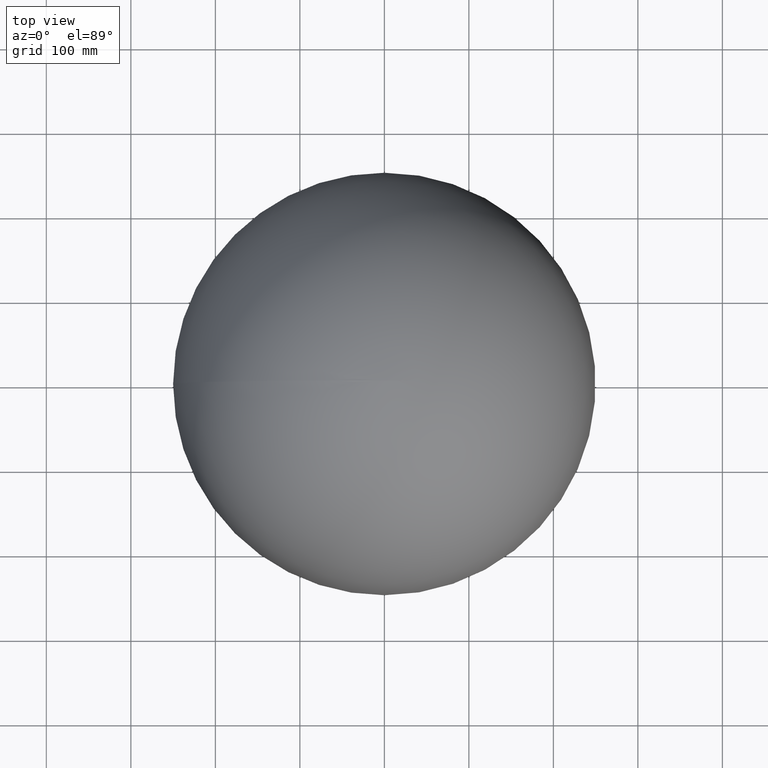
[diagram: clean part render]
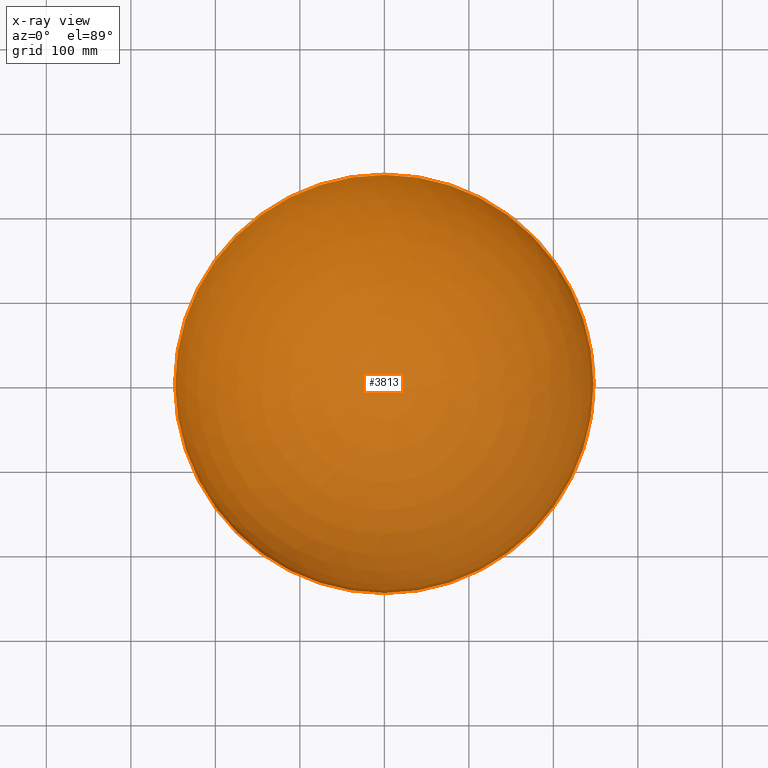
[diagram: x-ray — body ghosted, one internal face saturated and labeled with its STEP entity id]
A machine part, top view, then the same camera in x-ray: the body is ghosted and one INTERNAL B-rep face — a face not visible from any outside direction — is saturated and labeled: STEP entity #3813.
In plain terms, the highlighted spherical surface has radius 247.5 mm.
Its self-contained STEP definition (entity closure, byte-faithful):
#4 = ORIENTED_EDGE ( 'NONE', *, *, #8452, .F. ) ;
#22 = DIRECTION ( 'NONE',  ( 1.000000000000000000, 0.0000000000000000000, 0.0000000000000000000 ) ) ;
#23 = EDGE_CURVE ( 'NONE', #3772, #7956, #7551, .T. ) ;
#27 = EDGE_CURVE ( 'NONE', #1886, #7909, #3476, .T. ) ;
#30 = VERTEX_POINT ( 'NONE', #7876 ) ;
#33 = DIRECTION ( 'NONE',  ( 0.0000000000000000000, -0.7209840770893445300, -0.6929516293246059700 ) ) ;
#50 = EDGE_CURVE ( 'NONE', #5446, #1967, #1106, .T. ) ;
#87 = CARTESIAN_POINT ( 'NONE',  ( -247.4980333878201300, 0.8649839743589744500, -0.4746281550480772000 ) ) ;
#94 = CARTESIAN_POINT ( 'NONE',  ( -247.4972527502044100, 0.4860234708867521300, -1.060029380341880100 ) ) ;
#102 = DIRECTION ( 'NONE',  ( 1.000000000000000000, 0.0000000000000000000, 0.0000000000000000000 ) ) ;
#109 = DIRECTION ( 'NONE',  ( 0.0000000000000000000, 0.0000000000000000000, 1.000000000000000000 ) ) ;
#117 = CARTESIAN_POINT ( 'NONE',  ( -247.4982937489096700, 0.9192382013542895700, -0.03526381199362779700 ) ) ;
#121 = AXIS2_PLACEMENT_3D ( 'NONE', #3332, #8469, #4053 ) ;
#127 = CARTESIAN_POINT ( 'NONE',  ( 0.0000000000000000000, 0.1939288023721398300, -0.2017739372885175900 ) ) ;
#133 = CARTESIAN_POINT ( 'NONE',  ( 0.0000000000000000000, 0.0000000000000000000, -1.441639957264959200 ) ) ;
#149 = CARTESIAN_POINT ( 'NONE',  ( -247.4644150174301300, 0.8017537850375243700, -4.119626484512040500 ) ) ;
#158 = CARTESIAN_POINT ( 'NONE',  ( -247.4995081667112500, 0.4915886251335469500, -0.04240117521367545200 ) ) ;
#159 = DIRECTION ( 'NONE',  ( -0.0000000000000000000, -0.0000000000000000000, 1.000000000000000000 ) ) ;
#172 = CARTESIAN_POINT ( 'NONE',  ( -247.4850619883460500, 0.8970176329532970600, -2.567248736570503000 ) ) ;
#185 = AXIS2_PLACEMENT_3D ( 'NONE', #5253, #3850, #906 ) ;
#197 = CARTESIAN_POINT ( 'NONE',  ( -247.4785412149246300, 0.7241167913093582400, -3.178151565712385600 ) ) ;
#210 = CARTESIAN_POINT ( 'NONE',  ( -247.4701534328886200, 0.8152426492843695100, -3.756319753282045600 ) ) ;
#227 = ORIENTED_EDGE ( 'NONE', *, *, #7166, .F. ) ;
#237 = CARTESIAN_POINT ( 'NONE',  ( -247.4988229152708600, 0.7502357939369659300, -0.1407189002403848300 ) ) ;
#240 = AXIS2_PLACEMENT_3D ( 'NONE', #6033, #7493, #2295 ) ;
#246 = CARTESIAN_POINT ( 'NONE',  ( -247.4678167182987900, 0.8642753316270017600, -3.896682270111474700 ) ) ;
#270 = DIRECTION ( 'NONE',  ( -1.000000000000000000, 0.0000000000000000000, -1.224646799147353200E-016 ) ) ;
#276 = ORIENTED_EDGE ( 'NONE', *, *, #2046, .F. ) ;
#277 = EDGE_CURVE ( 'NONE', #4193, #7976, #868, .T. ) ;
#290 = ORIENTED_EDGE ( 'NONE', *, *, #1346, .F. ) ;
#298 = DIRECTION ( 'NONE',  ( -1.000000000000000000, 0.0000000000000000000, -1.224646799147353200E-016 ) ) ;
#303 = DIRECTION ( 'NONE',  ( -1.000000000000000000, 0.0000000000000000000, -1.224646799147353200E-016 ) ) ;
#309 = CARTESIAN_POINT ( 'NONE',  ( -247.4968187332560200, 0.08356836301757877800, -1.253837693032124400 ) ) ;
#314 = CARTESIAN_POINT ( 'NONE',  ( -247.4912793190045500, 0.0000000000000000000, -2.077657585470085200 ) ) ;
#330 = CARTESIAN_POINT ( 'NONE',  ( -1.515500413944874000E-014, -247.5000000000000000, 0.0000000000000000000 ) ) ;
#338 = CARTESIAN_POINT ( 'NONE',  ( 0.0000000000000000000, -3.204861111111111600, 0.0000000000000000000 ) ) ;
#339 = AXIS2_PLACEMENT_3D ( 'NONE', #1737, #4724, #2449 ) ;
#341 = CARTESIAN_POINT ( 'NONE',  ( -247.4973575856037700, 0.2315945210828663500, -1.121934371737279600 ) ) ;
#344 = CARTESIAN_POINT ( 'NONE',  ( -247.4721452984287000, -2.475560897435897800, -2.767471704727564800 ) ) ;
#351 = DIRECTION ( 'NONE',  ( -1.000000000000000000, -1.010747041618742500E-012, 0.0000000000000000000 ) ) ;
#359 = CIRCLE ( 'NONE', #5411, 247.4981119132722000 ) ;
#376 = VERTEX_POINT ( 'NONE', #158 ) ;
#430 = ORIENTED_EDGE ( 'NONE', *, *, #4698, .F. ) ;
#443 = DIRECTION ( 'NONE',  ( -0.0000000000000000000, -0.0000000000000000000, -1.000000000000000000 ) ) ;
#465 = AXIS2_PLACEMENT_3D ( 'NONE', #3695, #6582, #4458 ) ;
#484 = AXIS2_PLACEMENT_3D ( 'NONE', #8070, #4404, #8856 ) ;
#489 = DIRECTION ( 'NONE',  ( -0.0000000000000000000, -0.0000000000000000000, 1.000000000000000000 ) ) ;
#507 = EDGE_CURVE ( 'NONE', #5027, #376, #6664, .T. ) ;
#512 = CARTESIAN_POINT ( 'NONE',  ( 0.0000000000000000000, 0.0000000000000000000, -2.349025106837606500 ) ) ;
#514 = EDGE_CURVE ( 'NONE', #2459, #3699, #4072, .T. ) ;
#517 = ORIENTED_EDGE ( 'NONE', *, *, #2330, .F. ) ;
#518 = ORIENTED_EDGE ( 'NONE', *, *, #9429, .F. ) ;
#523 = CARTESIAN_POINT ( 'NONE',  ( -247.4824803810683100, 0.8649839743589744500, -2.814908019497862800 ) ) ;
#525 = CARTESIAN_POINT ( 'NONE',  ( 0.0000000000000000000, -2.424679487179487700, 0.0000000000000000000 ) ) ;
#536 = CARTESIAN_POINT ( 'NONE',  ( 0.0000000000000000000, 0.0000000000000000000, -0.4579326923076936800 ) ) ;
#540 = CIRCLE ( 'NONE', #613, 247.4922475077318000 ) ;
#541 = DIRECTION ( 'NONE',  ( -0.0000000000000000000, -0.0000000000000000000, -1.000000000000000000 ) ) ;
#543 = CARTESIAN_POINT ( 'NONE',  ( -247.4623574381814400, 0.0000000000000000000, -4.316439636752138900 ) ) ;
#552 = CARTESIAN_POINT ( 'NONE',  ( -247.4801102243823700, 0.6747087005876067900, -3.064279931223290500 ) ) ;
#556 = AXIS2_PLACEMENT_3D ( 'NONE', #5944, #159, #6004 ) ;
#574 = EDGE_LOOP ( 'NONE', ( #3883, #961, #9095, #589, #290, #3513, #4397, #8040, #8758, #1874, #518, #3470, #4560, #8946 ) ) ;
#584 = CARTESIAN_POINT ( 'NONE',  ( -247.4980333878201300, 0.8649839743589744500, -0.4746281550480772000 ) ) ;
#586 = VERTEX_POINT ( 'NONE', #4792 ) ;
#589 = ORIENTED_EDGE ( 'NONE', *, *, #4916, .F. ) ;
#590 = EDGE_CURVE ( 'NONE', #2685, #586, #4994, .T. ) ;
#594 = ORIENTED_EDGE ( 'NONE', *, *, #4153, .F. ) ;
#597 = CIRCLE ( 'NONE', #938, 247.4928449169955800 ) ;
#601 = CARTESIAN_POINT ( 'NONE',  ( 0.0000000000000000000, 0.0000000000000000000, 0.0000000000000000000 ) ) ;
#603 = CARTESIAN_POINT ( 'NONE',  ( -247.4981477815221600, 0.8613573034379878900, -0.4191267419249566900 ) ) ;
#604 = EDGE_CURVE ( 'NONE', #736, #3600, #3519, .T. ) ;
#605 = CARTESIAN_POINT ( 'NONE',  ( -247.4801102243823700, 0.6747087005876067900, -3.064279931223290500 ) ) ;
#613 = AXIS2_PLACEMENT_3D ( 'NONE', #2847, #5717, #5047 ) ;
#614 = DIRECTION ( 'NONE',  ( -0.0000000000000000000, -0.6928993320646520400, 0.7210343373407115400 ) ) ;
#658 = CIRCLE ( 'NONE', #9365, 247.4881228046801600 ) ;
#669 = CARTESIAN_POINT ( 'NONE',  ( -247.4950572979107100, -0.01696047008547008400, -1.564073350694444200 ) ) ;
#679 = VERTEX_POINT ( 'NONE', #1276 ) ;
#680 = AXIS2_PLACEMENT_3D ( 'NONE', #1103, #1835, #3218 ) ;
#682 = SPHERICAL_SURFACE ( 'NONE', #3826, 247.5000000000000000 ) ;
#694 = VERTEX_POINT ( 'NONE', #8337 ) ;
#709 = CIRCLE ( 'NONE', #884, 247.4876971040115200 ) ;
#720 = EDGE_CURVE ( 'NONE', #2685, #9413, #5326, .T. ) ;
#724 = VERTEX_POINT ( 'NONE', #2752 ) ;
#725 = AXIS2_PLACEMENT_3D ( 'NONE', #767, #3614, #8762 ) ;
#730 = CARTESIAN_POINT ( 'NONE',  ( -247.4845670303703600, -2.763888888888888800, -3.030811828521116800E-014 ) ) ;
#734 = VERTEX_POINT ( 'NONE', #956 ) ;
#736 = VERTEX_POINT ( 'NONE', #9097 ) ;
#743 = DIRECTION ( 'NONE',  ( 0.0000000000000000000, -0.6743193281498540700, 0.7384398714069611000 ) ) ;
#748 = ORIENTED_EDGE ( 'NONE', *, *, #5925, .F. ) ;
#752 = CARTESIAN_POINT ( 'NONE',  ( -247.4802351515145600, 0.5648554747534450000, -3.076385483607456900 ) ) ;
#754 = ORIENTED_EDGE ( 'NONE', *, *, #4640, .F. ) ;
#766 = VERTEX_POINT ( 'NONE', #6165 ) ;
#767 = CARTESIAN_POINT ( 'NONE',  ( 0.0000000000000000000, 0.9667467948717949300, 0.0000000000000000000 ) ) ;
#783 = CARTESIAN_POINT ( 'NONE',  ( -247.4933267460081400, 0.04434912618506065000, -1.817319477323706200 ) ) ;
#795 = FACE_BOUND ( 'NONE', #804, .T. ) ;
#804 = EDGE_LOOP ( 'NONE', ( #4135, #3049, #430, #1355, #9432, #5192, #2094, #2900, #9395 ) ) ;
#806 = B_SPLINE_CURVE_WITH_KNOTS ( 'NONE', 3,
 ( #2593, #6065, #5469, #4789, #7725, #8503, #9234, #4731, #8231, #1150 ),
 .UNSPECIFIED., .F., .F.,
 ( 4, 2, 2, 2, 4 ),
 ( 0.0000000000000000000, 0.0001133596188112780100, 0.0002267192376225560300, 0.0003400788564338340700, 0.0004534384752451119500 ),
 .UNSPECIFIED. ) ;
#810 = EDGE_CURVE ( 'NONE', #3577, #3143, #5109, .T. ) ;
#812 = EDGE_CURVE ( 'NONE', #3677, #8489, #7535, .T. ) ;
#823 = CARTESIAN_POINT ( 'NONE',  ( -247.4973352258173000, 0.8822378871325196000, -0.7372826071510162300 ) ) ;
#826 = CARTESIAN_POINT ( 'NONE',  ( -247.4756959572635800, 0.0000000000000000000, -3.468416132478634200 ) ) ;
#831 = CARTESIAN_POINT ( 'NONE',  ( -247.4637370287858900, 0.6016453574410846100, -4.193711706973079600 ) ) ;
#845 = CARTESIAN_POINT ( 'NONE',  ( -247.4667642862018200, 0.8641355799109454700, -3.962910922601067500 ) ) ;
#854 = CARTESIAN_POINT ( 'NONE',  ( 0.0000000000000000000, 0.0000000000000000000, 0.0000000000000000000 ) ) ;
#856 = ORIENTED_EDGE ( 'NONE', *, *, #2348, .F. ) ;
#868 = CIRCLE ( 'NONE', #7379, 247.5000000000000000 ) ;
#876 = CARTESIAN_POINT ( 'NONE',  ( -247.4978981166179600, 0.8573779087641406600, -0.5539691877675935200 ) ) ;
#884 = AXIS2_PLACEMENT_3D ( 'NONE', #5646, #9436, #8664 ) ;
#886 = CIRCLE ( 'NONE', #1222, 247.4912793190045500 ) ;
#892 = CIRCLE ( 'NONE', #908, 247.4724283506611200 ) ;
#901 = CARTESIAN_POINT ( 'NONE',  ( -247.4818009754719400, 0.9837072649572650200, -2.835578592414529800 ) ) ;
#906 = DIRECTION ( 'NONE',  ( 1.000000000000000000, 0.0000000000000000000, 0.0000000000000000000 ) ) ;
#907 = CARTESIAN_POINT ( 'NONE',  ( -247.4672161999393400, 0.8649839743589744500, -3.934299045138890600 ) ) ;
#908 = AXIS2_PLACEMENT_3D ( 'NONE', #5787, #4417, #743 ) ;
#918 = CARTESIAN_POINT ( 'NONE',  ( -247.4974797207694100, 0.7898056555728786300, -0.7915883441709676800 ) ) ;
#921 = DIRECTION ( 'NONE',  ( 1.000000000000000000, -1.224646799147363100E-016, 0.0000000000000000000 ) ) ;
#927 = CARTESIAN_POINT ( 'NONE',  ( -247.4811398741672400, 0.9809349457093740100, -2.893786989490190200 ) ) ;
#930 = CARTESIAN_POINT ( 'NONE',  ( -247.4723168968099600, 0.8205854589286113400, -3.609753008143696400 ) ) ;
#932 = CARTESIAN_POINT ( 'NONE',  ( -247.4826313296308300, 0.9799469758423602400, -2.763724767791139400 ) ) ;
#938 = AXIS2_PLACEMENT_3D ( 'NONE', #8482, #4038, #1865 ) ;
#939 = EDGE_CURVE ( 'NONE', #7597, #7160, #2361, .T. ) ;
#942 = AXIS2_PLACEMENT_3D ( 'NONE', #6018, #3144, #6681 ) ;
#956 = CARTESIAN_POINT ( 'NONE',  ( -247.4721152602733400, 0.9667467948717949300, -3.587139423076925100 ) ) ;
#961 = ORIENTED_EDGE ( 'NONE', *, *, #8088, .F. ) ;
#970 = VERTEX_POINT ( 'NONE', #5898 ) ;
#974 = CARTESIAN_POINT ( 'NONE',  ( -247.4888524379379600, 0.0000000000000000000, -2.349025106837606500 ) ) ;
#975 = CARTESIAN_POINT ( 'NONE',  ( 0.0000000000000000000, 0.0000000000000000000, -4.197716346153848500 ) ) ;
#982 = ORIENTED_EDGE ( 'NONE', *, *, #7204, .F. ) ;
#988 = CARTESIAN_POINT ( 'NONE',  ( -247.4727350182915600, 0.7923719618055555800, -3.587139423076925100 ) ) ;
#1022 = CARTESIAN_POINT ( 'NONE',  ( -247.4808556499292000, 0.0000000000000000000, -3.078325320512820300 ) ) ;
#1024 = CARTESIAN_POINT ( 'NONE',  ( -247.4736291200970000, 0.4364598355778772100, -3.587470879266159600 ) ) ;
#1045 = EDGE_CURVE ( 'NONE', #376, #3677, #2141, .T. ) ;
#1051 = CARTESIAN_POINT ( 'NONE',  ( -247.4989270233025700, 0.7298643476970138000, -0.02532982552956384100 ) ) ;
#1074 = VERTEX_POINT ( 'NONE', #6786 ) ;
#1076 = DIRECTION ( 'NONE',  ( 0.0000000000000000000, 1.000000000000000000, 0.0000000000000000000 ) ) ;
#1079 = ORIENTED_EDGE ( 'NONE', *, *, #2063, .F. ) ;
#1083 = B_SPLINE_CURVE_WITH_KNOTS ( 'NONE', 3,
 ( #7359, #7454, #3057, #6723, #2351, #2290, #2970, #3792, #7420, #94 ),
 .UNSPECIFIED., .F., .F.,
 ( 4, 2, 2, 2, 4 ),
 ( 0.0000000000000000000, 0.0001961914334333696200, 0.0003923828668667392400, 0.0005885743003001089100, 0.0007847657337334784700 ),
 .UNSPECIFIED. ) ;
#1086 = CARTESIAN_POINT ( 'NONE',  ( -247.4903593618607500, 0.9667467948717949300, -1.958934294871794300 ) ) ;
#1088 = CARTESIAN_POINT ( 'NONE',  ( -247.4980790703002900, 0.5236545138888890600, -0.8225827991452993000 ) ) ;
#1093 = CARTESIAN_POINT ( 'NONE',  ( 0.0000000000000000000, -3.069177350427351000, 0.0000000000000000000 ) ) ;
#1102 = B_SPLINE_CURVE_WITH_KNOTS ( 'NONE', 3,
 ( #8193, #6725, #4624, #3796, #918, #823, #5969, #1551, #2294, #2557, #7689, #7591 ),
 .UNSPECIFIED., .F., .F.,
 ( 4, 2, 2, 2, 2, 4 ),
 ( 1.084202172485504300E-019, 0.0001605680075444586400, 0.0003211360150889171700, 0.0004817040226333757000, 0.0005619880264056049400, 0.0006422720301778342400 ),
 .UNSPECIFIED. ) ;
#1103 = CARTESIAN_POINT ( 'NONE',  ( 0.0000000000000000000, -3.204861111111111600, 0.0000000000000000000 ) ) ;
#1106 = CIRCLE ( 'NONE', #4254, 247.4867562922084400 ) ;
#1140 = FACE_OUTER_BOUND ( 'NONE', #2583, .T. ) ;
#1145 = CARTESIAN_POINT ( 'NONE',  ( -247.4995081667112500, 0.4915886251335469500, -0.04240117521367545200 ) ) ;
#1150 = CARTESIAN_POINT ( 'NONE',  ( -247.4930794488195700, 0.9837072649572650200, -1.567783453525640700 ) ) ;
#1165 = ORIENTED_EDGE ( 'NONE', *, *, #2576, .F. ) ;
#1175 = CARTESIAN_POINT ( 'NONE',  ( -247.4988229152708600, 0.7502357939369659300, -0.1407189002403848300 ) ) ;
#1184 = CARTESIAN_POINT ( 'NONE',  ( -247.4737566879979100, 0.3495446881677350400, -3.587139423076925100 ) ) ;
#1193 = ORIENTED_EDGE ( 'NONE', *, *, #1263, .F. ) ;
#1212 = CARTESIAN_POINT ( 'NONE',  ( 0.0000000000000000000, 0.0000000000000000000, 0.0000000000000000000 ) ) ;
#1222 = AXIS2_PLACEMENT_3D ( 'NONE', #3366, #4162, #6994 ) ;
#1244 = DIRECTION ( 'NONE',  ( -0.0000000000000000000, -0.0000000000000000000, -1.000000000000000000 ) ) ;
#1263 = EDGE_CURVE ( 'NONE', #970, #9386, #4943, .T. ) ;
#1269 = B_SPLINE_CURVE_WITH_KNOTS ( 'NONE', 3,
 ( #2029, #2769, #7903, #5765, #9458, #3515, #8651, #4247, #9423, #603, #5731, #5006 ),
 .UNSPECIFIED., .F., .F.,
 ( 4, 2, 2, 2, 2, 4 ),
 ( 0.0000000000000000000, 0.0001641360142287011500, 0.0003282720284574024500, 0.0004924080426861037400, 0.0005744760498004545400, 0.0006565440569148053400 ),
 .UNSPECIFIED. ) ;
#1272 = AXIS2_PLACEMENT_3D ( 'NONE', #5108, #7329, #2140 ) ;
#1276 = CARTESIAN_POINT ( 'NONE',  ( -247.4893092167843100, -1.881944444444444900, -1.322916666666668700 ) ) ;
#1294 = DIRECTION ( 'NONE',  ( -0.0000000000000000000, -0.0000000000000000000, -1.000000000000000000 ) ) ;
#1303 = DIRECTION ( 'NONE',  ( -0.0000000000000000000, -1.000000000000000000, 0.0000000000000000000 ) ) ;
#1306 = VERTEX_POINT ( 'NONE', #5912 ) ;
#1309 = AXIS2_PLACEMENT_3D ( 'NONE', #7810, #4080, #3416 ) ;
#1314 = CARTESIAN_POINT ( 'NONE',  ( 0.0000000000000000000, -3.204861111111111600, 0.0000000000000000000 ) ) ;
#1318 = CARTESIAN_POINT ( 'NONE',  ( -247.4776755404217000, -2.560363247863248300, -2.120058760683762900 ) ) ;
#1322 = ORIENTED_EDGE ( 'NONE', *, *, #8378, .F. ) ;
#1331 = VERTEX_POINT ( 'NONE', #3169 ) ;
#1335 = CARTESIAN_POINT ( 'NONE',  ( -247.4812385487823900, 0.8476837739252529600, -2.927253977308416300 ) ) ;
#1336 = DIRECTION ( 'NONE',  ( 0.0000000000000000000, 0.0000000000000000000, -1.000000000000000000 ) ) ;
#1346 = EDGE_CURVE ( 'NONE', #3699, #724, #6960, .T. ) ;
#1355 = ORIENTED_EDGE ( 'NONE', *, *, #9215, .F. ) ;
#1391 = VERTEX_POINT ( 'NONE', #5546 ) ;
#1395 = CARTESIAN_POINT ( 'NONE',  ( -247.4818354987888300, 0.8623240711485903300, -2.871987572107058000 ) ) ;
#1438 = CIRCLE ( 'NONE', #8844, 247.4853081085657300 ) ;
#1446 = AXIS2_PLACEMENT_3D ( 'NONE', #3541, #541, #7937 ) ;
#1466 = CARTESIAN_POINT ( 'NONE',  ( -247.4639179819834300, 0.4914586750456891300, -4.197512687069822900 ) ) ;
#1467 = EDGE_CURVE ( 'NONE', #7863, #694, #597, .T. ) ;
#1470 = DIRECTION ( 'NONE',  ( -0.0000000000000000000, -1.000000000000000000, 0.0000000000000000000 ) ) ;
#1502 = CARTESIAN_POINT ( 'NONE',  ( -247.4670240396130500, 0.9825426668323210500, -3.918918759485718400 ) ) ;
#1507 = CARTESIAN_POINT ( 'NONE',  ( 0.0000000000000000000, 0.0000000000000000000, -2.696714743589743600 ) ) ;
#1516 = DIRECTION ( 'NONE',  ( -0.0000000000000000000, -0.0000000000000000000, -1.000000000000000000 ) ) ;
#1521 = ORIENTED_EDGE ( 'NONE', *, *, #720, .F. ) ;
#1524 = DIRECTION ( 'NONE',  ( -0.0000000000000000000, -0.0000000000000000000, -1.000000000000000000 ) ) ;
#1537 = CARTESIAN_POINT ( 'NONE',  ( -247.4982171281544400, 0.9394244966590257200, -4.293511859689285300E-012 ) ) ;
#1539 = CARTESIAN_POINT ( 'NONE',  ( -247.4802030880987000, 0.5832573573995246700, -3.075586057634534900 ) ) ;
#1551 = CARTESIAN_POINT ( 'NONE',  ( -247.4973499416024900, 0.9589993803983114500, -0.6267465020412529300 ) ) ;
#1565 = CARTESIAN_POINT ( 'NONE',  ( -247.4757134685170300, -3.204861111111111600, -1.322916666666668700 ) ) ;
#1570 = VERTEX_POINT ( 'NONE', #7121 ) ;
#1578 = DIRECTION ( 'NONE',  ( 0.0000000000000000000, 0.0000000000000000000, -1.000000000000000000 ) ) ;
#1581 = CARTESIAN_POINT ( 'NONE',  ( 0.0000000000000000000, 0.0000000000000000000, -0.4579326923076936800 ) ) ;
#1586 = DIRECTION ( 'NONE',  ( 1.000000000000000000, 0.0000000000000000000, 0.0000000000000000000 ) ) ;
#1604 = CARTESIAN_POINT ( 'NONE',  ( -247.4980852571436000, 0.6818088160287884000, -0.6960511159703614000 ) ) ;
#1605 = AXIS2_PLACEMENT_3D ( 'NONE', #512, #4753, #9257 ) ;
#1613 = VERTEX_POINT ( 'NONE', #8351 ) ;
#1622 = CARTESIAN_POINT ( 'NONE',  ( -247.4790382883713800, 0.8787627801360155000, -3.099474482400772900 ) ) ;
#1624 = AXIS2_PLACEMENT_3D ( 'NONE', #4970, #3571, #7229 ) ;
#1635 = ORIENTED_EDGE ( 'NONE', *, *, #7990, .F. ) ;
#1639 = DIRECTION ( 'NONE',  ( 1.000000000000000000, 0.0000000000000000000, 0.0000000000000000000 ) ) ;
#1655 = CARTESIAN_POINT ( 'NONE',  ( -247.4861128381514300, 0.8205848160548774300, -2.490361467228727800 ) ) ;
#1691 = CIRCLE ( 'NONE', #6181, 247.4643998183925100 ) ;
#1702 = CIRCLE ( 'NONE', #942, 247.4917759773561800 ) ;
#1712 = VERTEX_POINT ( 'NONE', #2637 ) ;
#1716 = DIRECTION ( 'NONE',  ( 1.224646799147353200E-016, -1.499759782661869700E-032, -1.000000000000000000 ) ) ;
#1718 = CARTESIAN_POINT ( 'NONE',  ( -247.4802336248246500, 0.9581583725027550400, -2.977706109346033100 ) ) ;
#1729 = CIRCLE ( 'NONE', #4336, 247.5000000000000000 ) ;
#1737 = CARTESIAN_POINT ( 'NONE',  ( 0.0000000000000000000, -1.881944444444444900, 0.0000000000000000000 ) ) ;
#1741 = CARTESIAN_POINT ( 'NONE',  ( -247.4990657767326400, 0.6808787376926760400, -0.03300895479708260100 ) ) ;
#1745 = CARTESIAN_POINT ( 'NONE',  ( -247.4869642661650500, 0.9667467948717949300, -2.349025106837606500 ) ) ;
#1759 = DIRECTION ( 'NONE',  ( 0.0000000000000000000, 0.0000000000000000000, 1.000000000000000000 ) ) ;
#1766 = ORIENTED_EDGE ( 'NONE', *, *, #3453, .F. ) ;
#1771 = DIRECTION ( 'NONE',  ( 0.0000000000000000000, 0.0000000000000000000, -1.000000000000000000 ) ) ;
#1775 = ORIENTED_EDGE ( 'NONE', *, *, #7321, .F. ) ;
#1776 = CARTESIAN_POINT ( 'NONE',  ( -247.4993062340797100, 0.5864698856465109200, -0.04138265830451928100 ) ) ;
#1779 = B_SPLINE_CURVE_WITH_KNOTS ( 'NONE', 3,
 ( #5352, #6876, #6055, #8287, #7521, #210, #7613, #6909, #246, #6809 ),
 .UNSPECIFIED., .F., .F.,
 ( 4, 2, 2, 2, 4 ),
 ( 0.0000000000000000000, 0.0001111447331565841900, 0.0002222894663131683900, 0.0003334341994697525800, 0.0004445789326263367800 ),
 .UNSPECIFIED. ) ;
#1796 = CARTESIAN_POINT ( 'NONE',  ( -247.4958728014235000, -0.005242751387151206400, -1.430812556741343400 ) ) ;
#1801 = CARTESIAN_POINT ( 'NONE',  ( 0.0000000000000000000, 0.0000000000000000000, -2.577991452991453200 ) ) ;
#1822 = ORIENTED_EDGE ( 'NONE', *, *, #5927, .F. ) ;
#1835 = DIRECTION ( 'NONE',  ( -0.0000000000000000000, -1.000000000000000000, 0.0000000000000000000 ) ) ;
#1839 = AXIS2_PLACEMENT_3D ( 'NONE', #1801, #6933, #2545 ) ;
#1862 = CARTESIAN_POINT ( 'NONE',  ( 0.0000000000000000000, 0.0000000000000000000, 0.0000000000000000000 ) ) ;
#1865 = DIRECTION ( 'NONE',  ( 0.0000000000000000000, 0.0000000000000000000, -1.000000000000000000 ) ) ;
#1869 = AXIS2_PLACEMENT_3D ( 'NONE', #127, #6563, #33 ) ;
#1874 = ORIENTED_EDGE ( 'NONE', *, *, #6500, .F. ) ;
#1886 = VERTEX_POINT ( 'NONE', #8797 ) ;
#1889 = CARTESIAN_POINT ( 'NONE',  ( -247.4858089234240600, 0.9667467948717949300, -2.467748397435897400 ) ) ;
#1921 = CARTESIAN_POINT ( 'NONE',  ( -247.4975494811755500, 0.9837072649572650200, -0.4952987279647437200 ) ) ;
#1937 = ORIENTED_EDGE ( 'NONE', *, *, #9501, .F. ) ;
#1950 = VERTEX_POINT ( 'NONE', #5910 ) ;
#1967 = VERTEX_POINT ( 'NONE', #1318 ) ;
#2029 = CARTESIAN_POINT ( 'NONE',  ( -247.4996618760247900, 0.3760454226762820500, -0.1611244658119660400 ) ) ;
#2046 = EDGE_CURVE ( 'NONE', #9140, #6493, #2494, .T. ) ;
#2063 = EDGE_CURVE ( 'NONE', #1950, #7712, #3784, .T. ) ;
#2065 = CARTESIAN_POINT ( 'NONE',  ( 0.0000000000000000000, 0.0000000000000000000, -0.8225827991452993000 ) ) ;
#2068 = CARTESIAN_POINT ( 'NONE',  ( -247.4940705894111100, 0.001798520757956838200, -1.713608714561631200 ) ) ;
#2092 = DIRECTION ( 'NONE',  ( -0.0000000000000000000, -1.000000000000000000, 0.0000000000000000000 ) ) ;
#2094 = ORIENTED_EDGE ( 'NONE', *, *, #2948, .F. ) ;
#2097 = B_SPLINE_CURVE_WITH_KNOTS ( 'NONE', 3,
 ( #5918, #1502, #5374, #3841, #8966, #4674, #2401, #7574, #930, #3208 ),
 .UNSPECIFIED., .F., .F.,
 ( 4, 2, 2, 2, 4 ),
 ( 0.0000000000000000000, 0.0001071661685159411600, 0.0002143323370318824000, 0.0003214985055478236300, 0.0004286646740637649200 ),
 .UNSPECIFIED. ) ;
#2109 = AXIS2_PLACEMENT_3D ( 'NONE', #3397, #4889, #1336 ) ;
#2140 = DIRECTION ( 'NONE',  ( 1.000000000000000000, 0.0000000000000000000, 0.0000000000000000000 ) ) ;
#2141 = CIRCLE ( 'NONE', #6788, 247.4999963679602500 ) ;
#2169 = DIRECTION ( 'NONE',  ( -1.000000000000000000, -1.446842645691504000E-012, 0.0000000000000000000 ) ) ;
#2190 = VERTEX_POINT ( 'NONE', #9303 ) ;
#2198 = CARTESIAN_POINT ( 'NONE',  ( -247.4857282516524900, 0.7414233318213105900, -2.552647399331124100 ) ) ;
#2201 = DIRECTION ( 'NONE',  ( 0.0000000000000000000, 0.0000000000000000000, 1.000000000000000000 ) ) ;
#2204 = EDGE_CURVE ( 'NONE', #7508, #6400, #709, .T. ) ;
#2241 = CARTESIAN_POINT ( 'NONE',  ( -247.4637007183891300, 0.6566798299997355100, -4.187593436177534700 ) ) ;
#2247 = VERTEX_POINT ( 'NONE', #8009 ) ;
#2252 = CARTESIAN_POINT ( 'NONE',  ( -247.4663131083898700, 0.8623242590316521100, -3.991377047826243800 ) ) ;
#2257 = CARTESIAN_POINT ( 'NONE',  ( 0.0000000000000000000, 0.0000000000000000000, -1.085470085470086900 ) ) ;
#2271 = CARTESIAN_POINT ( 'NONE',  ( -247.4980203843098500, 0.9386035389918360200, -0.3167060786854071200 ) ) ;
#2278 = CIRCLE ( 'NONE', #4864, 247.4976196950054500 ) ;
#2284 = CARTESIAN_POINT ( 'NONE',  ( -247.4984440605076400, 0.5241845285790598400, -0.7038595085470088500 ) ) ;
#2290 = CARTESIAN_POINT ( 'NONE',  ( -247.4959997610505400, 0.7938803000119866200, -1.163711100737940400 ) ) ;
#2294 = CARTESIAN_POINT ( 'NONE',  ( -247.4973746652583500, 0.9687809753535233700, -0.6014223838452886800 ) ) ;
#2295 = DIRECTION ( 'NONE',  ( 1.000000000000000000, 0.0000000000000000000, 0.0000000000000000000 ) ) ;
#2299 = ORIENTED_EDGE ( 'NONE', *, *, #8179, .F. ) ;
#2313 = CARTESIAN_POINT ( 'NONE',  ( -247.4926203794779800, 0.1114688394810551100, -1.908359321186083600 ) ) ;
#2330 = EDGE_CURVE ( 'NONE', #2190, #1391, #6653, .T. ) ;
#2334 = CARTESIAN_POINT ( 'NONE',  ( -247.4639819802999900, 0.4547526041666666900, -4.197716346153848500 ) ) ;
#2346 = CARTESIAN_POINT ( 'NONE',  ( -247.4921910162462700, 0.1672196347489316400, -1.958934294871794300 ) ) ;
#2347 = ORIENTED_EDGE ( 'NONE', *, *, #1467, .F. ) ;
#2348 = EDGE_CURVE ( 'NONE', #6454, #9201, #7117, .T. ) ;
#2351 = CARTESIAN_POINT ( 'NONE',  ( -247.4952231181289300, 0.8858199774049023700, -1.258659546458445800 ) ) ;
#2358 = CARTESIAN_POINT ( 'NONE',  ( -247.4692480724230000, -1.881944444444444400, -3.417534722222221900 ) ) ;
#2360 = CIRCLE ( 'NONE', #185, 247.4740035453409100 ) ;
#2361 = CIRCLE ( 'NONE', #1869, 247.4998417755006100 ) ;
#2371 = VERTEX_POINT ( 'NONE', #6690 ) ;
#2400 = ORIENTED_EDGE ( 'NONE', *, *, #810, .F. ) ;
#2401 = CARTESIAN_POINT ( 'NONE',  ( -247.4709181820993300, 0.8970189461813481400, -3.686641466895521200 ) ) ;
#2438 = CARTESIAN_POINT ( 'NONE',  ( -247.4965403389962000, 0.04484050907217089500, -1.309509585206185100 ) ) ;
#2449 = DIRECTION ( 'NONE',  ( 0.0000000000000000000, 0.0000000000000000000, -1.000000000000000000 ) ) ;
#2459 = VERTEX_POINT ( 'NONE', #6947 ) ;
#2465 = CARTESIAN_POINT ( 'NONE',  ( -247.4818009754719400, 0.9837072649572650200, -2.835578592414529800 ) ) ;
#2468 = AXIS2_PLACEMENT_3D ( 'NONE', #1212, #7886, #5675 ) ;
#2494 = B_SPLINE_CURVE_WITH_KNOTS ( 'NONE', 3,
 ( #3167, #1024, #7500, #8339 ),
 .UNSPECIFIED., .F., .F.,
 ( 4, 4 ),
 ( 5.421010862427522200E-020, 0.0002607451579636901400 ),
 .UNSPECIFIED. ) ;
#2502 = EDGE_CURVE ( 'NONE', #7259, #4193, #8736, .T. ) ;
#2519 = EDGE_CURVE ( 'NONE', #6635, #3356, #5149, .T. ) ;
#2531 = CARTESIAN_POINT ( 'NONE',  ( 0.0000000000000000000, 0.0000000000000000000, -3.197048611111110700 ) ) ;
#2537 = CARTESIAN_POINT ( 'NONE',  ( -247.4672161999393400, 0.8649839743589744500, -3.934299045138890600 ) ) ;
#2545 = DIRECTION ( 'NONE',  ( -1.000000000000000000, 0.0000000000000000000, 0.0000000000000000000 ) ) ;
#2557 = CARTESIAN_POINT ( 'NONE',  ( -247.4974472843694000, 0.9810012546281241500, -0.5494869575299644600 ) ) ;
#2576 = EDGE_CURVE ( 'NONE', #7481, #4530, #7806, .T. ) ;
#2583 = EDGE_LOOP ( 'NONE', ( #1521, #6369, #3328, #5198, #8529, #4183, #6238, #7897, #856, #9014, #4, #4362, #4194, #4265, #6263, #3818, #8240, #1165, #2698 ) ) ;
#2593 = CARTESIAN_POINT ( 'NONE',  ( -247.4909934568844700, 0.7878668369391025300, -1.958934294871794300 ) ) ;
#2601 = ORIENTED_EDGE ( 'NONE', *, *, #7447, .F. ) ;
#2618 = DIRECTION ( 'NONE',  ( -0.0000000000000000000, -0.0000000000000000000, 1.000000000000000000 ) ) ;
#2621 = CIRCLE ( 'NONE', #9496, 247.4909197341414400 ) ;
#2629 = FACE_BOUND ( 'NONE', #7563, .T. ) ;
#2631 = DIRECTION ( 'NONE',  ( -0.0000000000000000000, -1.000000000000000000, 0.0000000000000000000 ) ) ;
#2637 = CARTESIAN_POINT ( 'NONE',  ( -247.4996618760247900, 0.3760454226762820500, -0.1611244658119660400 ) ) ;
#2644 = EDGE_CURVE ( 'NONE', #1613, #9502, #7341, .T. ) ;
#2658 = DIRECTION ( 'NONE',  ( 1.000000000000000000, 0.0000000000000000000, 0.0000000000000000000 ) ) ;
#2669 = B_SPLINE_CURVE_WITH_KNOTS ( 'NONE', 3,
 ( #237, #3080, #7412, #7444, #117, #1537 ),
 .UNSPECIFIED., .F., .F.,
 ( 4, 2, 4 ),
 ( 0.0000000000000000000, 0.0001197008430209538900, 0.0002394016860419077800 ),
 .UNSPECIFIED. ) ;
#2680 = DIRECTION ( 'NONE',  ( 0.0000000000000000000, 0.0000000000000000000, 1.000000000000000000 ) ) ;
#2682 = B_SPLINE_CURVE_WITH_KNOTS ( 'NONE', 3,
 ( #669, #5798, #6532, #2068, #6717, #783, #7415, #2313, #5226, #2346 ),
 .UNSPECIFIED., .F., .F.,
 ( 4, 2, 2, 2, 4 ),
 ( 0.0000000000000000000, 0.0001129931461512557100, 0.0002259862923025114200, 0.0003389794384537671000, 0.0004519725846050228400 ),
 .UNSPECIFIED. ) ;
#2685 = VERTEX_POINT ( 'NONE', #330 ) ;
#2698 = ORIENTED_EDGE ( 'NONE', *, *, #8695, .F. ) ;
#2717 = VERTEX_POINT ( 'NONE', #1088 ) ;
#2726 = EDGE_CURVE ( 'NONE', #5772, #7282, #3444, .T. ) ;
#2752 = CARTESIAN_POINT ( 'NONE',  ( -247.4818009754719400, 0.9837072649572650200, -2.835578592414529800 ) ) ;
#2769 = CARTESIAN_POINT ( 'NONE',  ( -247.4995784631225300, 0.4307966578597324200, -0.1614702465309491600 ) ) ;
#2772 = DIRECTION ( 'NONE',  ( -0.0000000000000000000, -0.0000000000000000000, -1.000000000000000000 ) ) ;
#2789 = DIRECTION ( 'NONE',  ( 0.0000000000000000000, 0.0000000000000000000, 1.000000000000000000 ) ) ;
#2798 = DIRECTION ( 'NONE',  ( -0.0000000000000000000, -0.0000000000000000000, 1.000000000000000000 ) ) ;
#2801 = CARTESIAN_POINT ( 'NONE',  ( -247.4801505593408700, 0.6199815023636714400, -3.072572548005994400 ) ) ;
#2847 = CARTESIAN_POINT ( 'NONE',  ( 0.0000000000000000000, 0.0000000000000000000, -1.958934294871794300 ) ) ;
#2856 = VERTEX_POINT ( 'NONE', #3670 ) ;
#2883 = CIRCLE ( 'NONE', #240, 247.4976196950054500 ) ;
#2900 = ORIENTED_EDGE ( 'NONE', *, *, #5304, .F. ) ;
#2922 = CARTESIAN_POINT ( 'NONE',  ( 0.0000000000000000000, 0.0000000000000000000, 0.0000000000000000000 ) ) ;
#2948 = EDGE_CURVE ( 'NONE', #7394, #766, #1083, .T. ) ;
#2959 = AXIS2_PLACEMENT_3D ( 'NONE', #4667, #1716, #298 ) ;
#2966 = CIRCLE ( 'NONE', #4035, 247.5000000000000000 ) ;
#2970 = CARTESIAN_POINT ( 'NONE',  ( -247.4963515314200600, 0.7391350715953289900, -1.124258748091596000 ) ) ;
#2974 = CARTESIAN_POINT ( 'NONE',  ( -247.4842006042972900, 0.8339242994836084700, -2.669532183389669000 ) ) ;
#2988 = EDGE_CURVE ( 'NONE', #734, #3435, #359, .T. ) ;
#3001 = ORIENTED_EDGE ( 'NONE', *, *, #7748, .F. ) ;
#3011 = VERTEX_POINT ( 'NONE', #5937 ) ;
#3019 = CARTESIAN_POINT ( 'NONE',  ( -247.4654661418538500, 0.8476846695167963300, -4.046642462745491100 ) ) ;
#3021 = EDGE_CURVE ( 'NONE', #8424, #2856, #4803, .T. ) ;
#3023 = EDGE_CURVE ( 'NONE', #4530, #30, #6316, .T. ) ;
#3027 = DIRECTION ( 'NONE',  ( -0.0000000000000000000, -0.0000000000000000000, 1.000000000000000000 ) ) ;
#3049 = ORIENTED_EDGE ( 'NONE', *, *, #6109, .F. ) ;
#3057 = CARTESIAN_POINT ( 'NONE',  ( -247.4939297181679500, 0.9725655003530793200, -1.436404213289019800 ) ) ;
#3077 = ORIENTED_EDGE ( 'NONE', *, *, #7646, .F. ) ;
#3080 = CARTESIAN_POINT ( 'NONE',  ( -247.4987156000433700, 0.7882031997837126700, -0.1270454393407599900 ) ) ;
#3104 = DIRECTION ( 'NONE',  ( 0.0000000000000000000, 0.0000000000000000000, -1.000000000000000000 ) ) ;
#3107 = CARTESIAN_POINT ( 'NONE',  ( 0.0000000000000000000, 0.0000000000000000000, -2.120058760683762900 ) ) ;
#3135 = AXIS2_PLACEMENT_3D ( 'NONE', #2531, #4124, #2658 ) ;
#3143 = VERTEX_POINT ( 'NONE', #7619 ) ;
#3144 = DIRECTION ( 'NONE',  ( -0.0000000000000000000, -1.000000000000000000, 0.0000000000000000000 ) ) ;
#3150 = CARTESIAN_POINT ( 'NONE',  ( -247.4843758598358900, -2.560363247863248300, -1.085470085470086900 ) ) ;
#3157 = DIRECTION ( 'NONE',  ( -0.0000000000000000000, -0.0000000000000000000, -1.000000000000000000 ) ) ;
#3167 = CARTESIAN_POINT ( 'NONE',  ( -247.4737566879979100, 0.3495446881677350400, -3.587139423076925100 ) ) ;
#3169 = CARTESIAN_POINT ( 'NONE',  ( -247.4982171281544400, 0.9394244966590257200, -4.293511859689285300E-012 ) ) ;
#3175 = CARTESIAN_POINT ( 'NONE',  ( -247.4972527502044100, 0.4860234708867521300, -1.060029380341880100 ) ) ;
#3185 = CARTESIAN_POINT ( 'NONE',  ( -247.4860166607082000, -2.628205128205128600, -0.1187232905982907000 ) ) ;
#3202 = ORIENTED_EDGE ( 'NONE', *, *, #5775, .F. ) ;
#3205 = CIRCLE ( 'NONE', #8643, 247.4958013264742600 ) ;
#3208 = CARTESIAN_POINT ( 'NONE',  ( -247.4727350182915600, 0.7923719618055555800, -3.587139423076925100 ) ) ;
#3215 = EDGE_CURVE ( 'NONE', #3011, #2717, #8140, .T. ) ;
#3218 = DIRECTION ( 'NONE',  ( 0.0000000000000000000, 0.0000000000000000000, 1.000000000000000000 ) ) ;
#3263 = DIRECTION ( 'NONE',  ( 0.0000000000000000000, 0.0000000000000000000, 1.000000000000000000 ) ) ;
#3275 = DIRECTION ( 'NONE',  ( 0.0000000000000000000, 0.0000000000000000000, -1.000000000000000000 ) ) ;
#3313 = CARTESIAN_POINT ( 'NONE',  ( -247.4973751370036200, 0.4198010489155892800, -1.061817307014292400 ) ) ;
#3315 = VERTEX_POINT ( 'NONE', #543 ) ;
#3328 = ORIENTED_EDGE ( 'NONE', *, *, #5958, .F. ) ;
#3332 = CARTESIAN_POINT ( 'NONE',  ( 0.0000000000000000000, 0.0000000000000000000, -3.587139423076925100 ) ) ;
#3356 = VERTEX_POINT ( 'NONE', #5891 ) ;
#3366 = CARTESIAN_POINT ( 'NONE',  ( 0.0000000000000000000, 0.0000000000000000000, -2.077657585470085200 ) ) ;
#3390 = CARTESIAN_POINT ( 'NONE',  ( -247.4617386445783300, 0.7812308848751596800, -4.281465127260568200 ) ) ;
#3397 = CARTESIAN_POINT ( 'NONE',  ( 0.0000000000000000000, 0.9667467948717949300, 0.0000000000000000000 ) ) ;
#3401 = EDGE_CURVE ( 'NONE', #8136, #8359, #4246, .T. ) ;
#3404 = EDGE_CURVE ( 'NONE', #8489, #1712, #5036, .T. ) ;
#3416 = DIRECTION ( 'NONE',  ( 0.0000000000000000000, 0.6744544184908600700, -0.7383164886267648000 ) ) ;
#3419 = CARTESIAN_POINT ( 'NONE',  ( -247.4616336713897900, 0.7241216106274850400, -4.297541517511992200 ) ) ;
#3431 = CARTESIAN_POINT ( 'NONE',  ( -247.4876991428741100, -2.424679487179487700, -0.4579326923076936800 ) ) ;
#3435 = VERTEX_POINT ( 'NONE', #5220 ) ;
#3444 = CIRCLE ( 'NONE', #2109, 247.4981119132722000 ) ;
#3451 = VERTEX_POINT ( 'NONE', #4423 ) ;
#3453 = EDGE_CURVE ( 'NONE', #3451, #4444, #1702, .T. ) ;
#3470 = ORIENTED_EDGE ( 'NONE', *, *, #8007, .F. ) ;
#3476 = B_SPLINE_CURVE_WITH_KNOTS ( 'NONE', 3,
 ( #8592, #8657, #5571, #3419, #3390, #5709, #7137, #4219, #6413, #4184, #8528, #9295 ),
 .UNSPECIFIED., .F., .F.,
 ( 4, 2, 2, 2, 2, 4 ),
 ( 0.0000000000000000000, 0.0001733898079294767100, 0.0003467796158589534300, 0.0005201694237884301400, 0.0006068643277531679600, 0.0006935592317179056600 ),
 .UNSPECIFIED. ) ;
#3485 = EDGE_CURVE ( 'NONE', #7956, #1331, #2669, .T. ) ;
#3513 = ORIENTED_EDGE ( 'NONE', *, *, #514, .F. ) ;
#3515 = CARTESIAN_POINT ( 'NONE',  ( -247.4987689005057000, 0.7470526604651631700, -0.2331936472407647700 ) ) ;
#3518 = B_SPLINE_CURVE_WITH_KNOTS ( 'NONE', 3,
 ( #7151, #7924, #5023, #5874 ),
 .UNSPECIFIED., .F., .F.,
 ( 4, 4 ),
 ( 5.421010862427522200E-020, 0.0002607448284410135300 ),
 .UNSPECIFIED. ) ;
#3519 = CIRCLE ( 'NONE', #6288, 247.4808556499292000 ) ;
#3522 = CIRCLE ( 'NONE', #1839, 247.4865732925087500 ) ;
#3524 = CARTESIAN_POINT ( 'NONE',  ( -247.4801531536127200, 0.7301190591780352100, -3.048204040007064500 ) ) ;
#3537 = CARTESIAN_POINT ( 'NONE',  ( -247.4549432821871200, -3.204861111111111600, -3.468416132478632500 ) ) ;
#3539 = CARTESIAN_POINT ( 'NONE',  ( 0.0000000000000000000, 0.0000000000000000000, -0.3392094017094030600 ) ) ;
#3541 = CARTESIAN_POINT ( 'NONE',  ( 0.0000000000000000000, 0.0000000000000000000, -2.238782051282053300 ) ) ;
#3544 = CARTESIAN_POINT ( 'NONE',  ( 0.0000000000000000000, 0.0000000000000000000, -0.1187232905982907000 ) ) ;
#3549 = FACE_BOUND ( 'NONE', #4850, .T. ) ;
#3551 = AXIS2_PLACEMENT_3D ( 'NONE', #5808, #9529, #2169 ) ;
#3552 = CARTESIAN_POINT ( 'NONE',  ( -247.4801265726324900, 0.7025725216153684300, -3.056824401789774100 ) ) ;
#3562 = EDGE_CURVE ( 'NONE', #5842, #2247, #8726, .T. ) ;
#3570 = VERTEX_POINT ( 'NONE', #6079 ) ;
#3571 = DIRECTION ( 'NONE',  ( -0.0000000000000000000, -0.0000000000000000000, 1.000000000000000000 ) ) ;
#3575 = ORIENTED_EDGE ( 'NONE', *, *, #4424, .F. ) ;
#3577 = VERTEX_POINT ( 'NONE', #5344 ) ;
#3600 = VERTEX_POINT ( 'NONE', #1022 ) ;
#3612 = CARTESIAN_POINT ( 'NONE',  ( -247.4976298842069000, 0.9822432851399520700, -0.4580294506395815000 ) ) ;
#3614 = DIRECTION ( 'NONE',  ( 0.0000000000000000000, 1.000000000000000000, 0.0000000000000000000 ) ) ;
#3649 = CIRCLE ( 'NONE', #4809, 247.4756959572635800 ) ;
#3670 = CARTESIAN_POINT ( 'NONE',  ( -247.4794178213136300, -1.881944444444444900, -2.577991452991453200 ) ) ;
#3676 = AXIS2_PLACEMENT_3D ( 'NONE', #6908, #7004, #6875 ) ;
#3677 = VERTEX_POINT ( 'NONE', #5271 ) ;
#3695 = CARTESIAN_POINT ( 'NONE',  ( 0.0000000000000000000, 0.0000000000000000000, 0.0000000000000000000 ) ) ;
#3696 = CARTESIAN_POINT ( 'NONE',  ( -247.4801108089191900, 0.6566798265436756300, -3.068202411288433400 ) ) ;
#3699 = VERTEX_POINT ( 'NONE', #8300 ) ;
#3725 = DIRECTION ( 'NONE',  ( -0.0000000000000000000, -0.0000000000000000000, -1.000000000000000000 ) ) ;
#3728 = CARTESIAN_POINT ( 'NONE',  ( -247.4978574299578000, 0.8205283014692414900, -0.6235798023971057500 ) ) ;
#3737 = CARTESIAN_POINT ( 'NONE',  ( -247.4867648388659500, 0.6089868790064102400, -2.486033904246794700 ) ) ;
#3747 = CARTESIAN_POINT ( 'NONE',  ( -247.4637178769729100, 0.6747087005876067900, -4.183670956864318700 ) ) ;
#3749 = DIRECTION ( 'NONE',  ( 0.0000000000000000000, 0.0000000000000000000, 1.000000000000000000 ) ) ;
#3755 = VERTEX_POINT ( 'NONE', #6821 ) ;
#3756 = EDGE_CURVE ( 'NONE', #4444, #1950, #2278, .T. ) ;
#3758 = CARTESIAN_POINT ( 'NONE',  ( -247.4641684907406900, 0.7797843805067200500, -4.138608003310339200 ) ) ;
#3772 = VERTEX_POINT ( 'NONE', #8957 ) ;
#3782 = EDGE_CURVE ( 'NONE', #2247, #4182, #3205, .T. ) ;
#3784 = CIRCLE ( 'NONE', #9283, 247.4928449169955800 ) ;
#3792 = CARTESIAN_POINT ( 'NONE',  ( -247.4969123266361600, 0.6187119526120007400, -1.072326467103180700 ) ) ;
#3796 = CARTESIAN_POINT ( 'NONE',  ( -247.4975982261623200, 0.7370679944242805000, -0.8052851480033459400 ) ) ;
#3803 = VERTEX_POINT ( 'NONE', #988 ) ;
#3813 = ADVANCED_FACE ( 'NONE', ( #1140, #2629, #5971, #795, #4797, #3549, #4238 ), #682, .F. ) ;
#3818 = ORIENTED_EDGE ( 'NONE', *, *, #5007, .F. ) ;
#3826 = AXIS2_PLACEMENT_3D ( 'NONE', #8233, #5297, #921 ) ;
#3841 = CARTESIAN_POINT ( 'NONE',  ( -247.4687463041011300, 0.9634984355409242900, -3.813470082594277800 ) ) ;
#3850 = DIRECTION ( 'NONE',  ( -0.0000000000000000000, -0.0000000000000000000, -1.000000000000000000 ) ) ;
#3854 = EDGE_CURVE ( 'NONE', #3952, #4835, #5250, .T. ) ;
#3883 = ORIENTED_EDGE ( 'NONE', *, *, #2502, .F. ) ;
#3951 = ORIENTED_EDGE ( 'NONE', *, *, #5860, .F. ) ;
#3952 = VERTEX_POINT ( 'NONE', #4309 ) ;
#3964 = DIRECTION ( 'NONE',  ( 1.224646799147353200E-016, -1.499759782661869700E-032, -1.000000000000000000 ) ) ;
#3978 = EDGE_CURVE ( 'NONE', #3600, #2459, #8493, .T. ) ;
#3984 = CIRCLE ( 'NONE', #5688, 247.4958013264742600 ) ;
#3996 = DIRECTION ( 'NONE',  ( 1.224646799147353200E-016, -1.499759782661869700E-032, -1.000000000000000000 ) ) ;
#4018 = ORIENTED_EDGE ( 'NONE', *, *, #939, .F. ) ;
#4035 = AXIS2_PLACEMENT_3D ( 'NONE', #1862, #3964, #270 ) ;
#4038 = DIRECTION ( 'NONE',  ( 0.0000000000000000000, 1.000000000000000000, 0.0000000000000000000 ) ) ;
#4053 = DIRECTION ( 'NONE',  ( 1.000000000000000000, 0.0000000000000000000, 0.0000000000000000000 ) ) ;
#4062 = AXIS2_PLACEMENT_3D ( 'NONE', #5262, #3027, #8192 ) ;
#4072 = CIRCLE ( 'NONE', #3135, 247.4793504116619800 ) ;
#4080 = DIRECTION ( 'NONE',  ( 0.0000000000000000000, 0.7383164886267648000, 0.6744544184908600700 ) ) ;
#4124 = DIRECTION ( 'NONE',  ( -0.0000000000000000000, -0.0000000000000000000, -1.000000000000000000 ) ) ;
#4135 = ORIENTED_EDGE ( 'NONE', *, *, #2726, .F. ) ;
#4153 = EDGE_CURVE ( 'NONE', #6493, #7922, #1779, .T. ) ;
#4162 = DIRECTION ( 'NONE',  ( -0.0000000000000000000, -0.0000000000000000000, -1.000000000000000000 ) ) ;
#4182 = VERTEX_POINT ( 'NONE', #6842 ) ;
#4183 = ORIENTED_EDGE ( 'NONE', *, *, #9520, .F. ) ;
#4184 = CARTESIAN_POINT ( 'NONE',  ( -247.4655188389459100, 0.9809351195330653400, -4.013176051831496100 ) ) ;
#4193 = VERTEX_POINT ( 'NONE', #974 ) ;
#4194 = ORIENTED_EDGE ( 'NONE', *, *, #812, .F. ) ;
#4201 = AXIS2_PLACEMENT_3D ( 'NONE', #4489, #4517, #5445 ) ;
#4215 = DIRECTION ( 'NONE',  ( 1.000000000000000000, 0.0000000000000000000, 0.0000000000000000000 ) ) ;
#4219 = CARTESIAN_POINT ( 'NONE',  ( -247.4642329684482700, 0.9581602852986784700, -4.097092431107480300 ) ) ;
#4229 = CIRCLE ( 'NONE', #7986, 247.5000000000000000 ) ;
#4238 = FACE_BOUND ( 'NONE', #6256, .T. ) ;
#4246 = CIRCLE ( 'NONE', #465, 247.5000000000000000 ) ;
#4247 = CARTESIAN_POINT ( 'NONE',  ( -247.4983621795948100, 0.8339218346561113600, -0.3406581389028254200 ) ) ;
#4254 = AXIS2_PLACEMENT_3D ( 'NONE', #7074, #6381, #2680 ) ;
#4265 = ORIENTED_EDGE ( 'NONE', *, *, #1045, .F. ) ;
#4273 = VERTEX_POINT ( 'NONE', #5594 ) ;
#4281 = CARTESIAN_POINT ( 'NONE',  ( -247.4809618132869100, 0.8360456436279470900, -2.953878639705734200 ) ) ;
#4309 = CARTESIAN_POINT ( 'NONE',  ( -247.4658215296140600, -3.204861111111111600, -2.577991452991453200 ) ) ;
#4336 = AXIS2_PLACEMENT_3D ( 'NONE', #4484, #1470, #3749 ) ;
#4362 = ORIENTED_EDGE ( 'NONE', *, *, #3404, .F. ) ;
#4394 = CARTESIAN_POINT ( 'NONE',  ( -247.4801747907417800, 0.6016453945851725200, -3.074320678219506100 ) ) ;
#4397 = ORIENTED_EDGE ( 'NONE', *, *, #3978, .F. ) ;
#4404 = DIRECTION ( 'NONE',  ( -0.0000000000000000000, -0.0000000000000000000, -1.000000000000000000 ) ) ;
#4417 = DIRECTION ( 'NONE',  ( -0.0000000000000000000, -0.7384398714069612100, -0.6743193281498541800 ) ) ;
#4423 = CARTESIAN_POINT ( 'NONE',  ( -247.4913523218037300, -2.017628205128205700, -0.4579326923076936800 ) ) ;
#4424 = EDGE_CURVE ( 'NONE', #4756, #5446, #3984, .T. ) ;
#4438 = CARTESIAN_POINT ( 'NONE',  ( -247.4865709634298700, 0.6449791630983693300, -2.496517580938530000 ) ) ;
#4444 = VERTEX_POINT ( 'NONE', #8795 ) ;
#4450 = ORIENTED_EDGE ( 'NONE', *, *, #2644, .F. ) ;
#4456 = CARTESIAN_POINT ( 'NONE',  ( -247.4999475533409200, 0.0000000000000000000, -0.1611244658119660400 ) ) ;
#4458 = DIRECTION ( 'NONE',  ( 0.0000000000000000000, 0.0000000000000000000, 1.000000000000000000 ) ) ;
#4475 = ORIENTED_EDGE ( 'NONE', *, *, #8415, .F. ) ;
#4484 = CARTESIAN_POINT ( 'NONE',  ( 0.0000000000000000000, 0.0000000000000000000, 0.0000000000000000000 ) ) ;
#4489 = CARTESIAN_POINT ( 'NONE',  ( 0.0000000000000000000, -2.424679487179487700, 0.0000000000000000000 ) ) ;
#4507 = ORIENTED_EDGE ( 'NONE', *, *, #3562, .F. ) ;
#4511 = EDGE_CURVE ( 'NONE', #9386, #2371, #1691, .T. ) ;
#4517 = DIRECTION ( 'NONE',  ( 0.0000000000000000000, 1.000000000000000000, 0.0000000000000000000 ) ) ;
#4529 = CARTESIAN_POINT ( 'NONE',  ( -247.4691227611746700, -3.204861111111111600, -2.238782051282053300 ) ) ;
#4530 = VERTEX_POINT ( 'NONE', #3185 ) ;
#4535 = CIRCLE ( 'NONE', #7040, 247.4845670303703600 ) ;
#4542 = CARTESIAN_POINT ( 'NONE',  ( -247.4637596041642100, 0.5832573105222660400, -4.194977085940546000 ) ) ;
#4552 = CARTESIAN_POINT ( 'NONE',  ( -247.4979615797483100, 0.8638441754284148500, -0.5141501770025618300 ) ) ;
#4560 = ORIENTED_EDGE ( 'NONE', *, *, #9379, .F. ) ;
#4564 = DIRECTION ( 'NONE',  ( -0.0000000000000000000, -0.0000000000000000000, -1.000000000000000000 ) ) ;
#4569 = CARTESIAN_POINT ( 'NONE',  ( -247.4805257279865900, 0.9683374106337476700, -2.950006437940588800 ) ) ;
#4572 = DIRECTION ( 'NONE',  ( -0.0000000000000000000, -1.000000000000000000, 0.0000000000000000000 ) ) ;
#4575 = CARTESIAN_POINT ( 'NONE',  ( -247.4846823565524400, 0.9176601076029818900, -2.596376906927808600 ) ) ;
#4582 = ORIENTED_EDGE ( 'NONE', *, *, #4511, .F. ) ;
#4596 = EDGE_CURVE ( 'NONE', #3435, #8136, #3649, .T. ) ;
#4621 = CARTESIAN_POINT ( 'NONE',  ( 0.0000000000000000000, -2.628205128205128600, 0.0000000000000000000 ) ) ;
#4624 = CARTESIAN_POINT ( 'NONE',  ( -247.4978420872543300, 0.6307931529606106700, -0.8204530867950539100 ) ) ;
#4630 = CARTESIAN_POINT ( 'NONE',  ( 0.0000000000000000000, 0.0000000000000000000, -1.085470085470086900 ) ) ;
#4639 = CARTESIAN_POINT ( 'NONE',  ( -247.4785734509011100, 0.7812247696374301500, -3.162076658505635200 ) ) ;
#4640 = EDGE_CURVE ( 'NONE', #7712, #7323, #7675, .T. ) ;
#4667 = CARTESIAN_POINT ( 'NONE',  ( 0.0000000000000000000, 0.0000000000000000000, 0.0000000000000000000 ) ) ;
#4669 = CARTESIAN_POINT ( 'NONE',  ( 0.0000000000000000000, -1.881944444444444900, 0.0000000000000000000 ) ) ;
#4674 = CARTESIAN_POINT ( 'NONE',  ( -247.4704067714198200, 0.9176612539539101800, -3.715769715898822300 ) ) ;
#4698 = EDGE_CURVE ( 'NONE', #7919, #7347, #4229, .T. ) ;
#4712 = AXIS2_PLACEMENT_3D ( 'NONE', #6771, #4572, #9033 ) ;
#4724 = DIRECTION ( 'NONE',  ( 0.0000000000000000000, 1.000000000000000000, 0.0000000000000000000 ) ) ;
#4731 = CARTESIAN_POINT ( 'NONE',  ( -247.4926007291196000, 0.9804324936158522700, -1.644020378297151400 ) ) ;
#4745 = ORIENTED_EDGE ( 'NONE', *, *, #27, .F. ) ;
#4753 = DIRECTION ( 'NONE',  ( -0.0000000000000000000, -0.0000000000000000000, 1.000000000000000000 ) ) ;
#4756 = VERTEX_POINT ( 'NONE', #8616 ) ;
#4758 = CARTESIAN_POINT ( 'NONE',  ( 0.0000000000000000000, -3.204861111111111600, 0.0000000000000000000 ) ) ;
#4760 = CARTESIAN_POINT ( 'NONE',  ( -247.4821579009600300, 0.8641355562964256900, -2.843520693353442500 ) ) ;
#4789 = CARTESIAN_POINT ( 'NONE',  ( -247.4914256235782900, 0.8974887611183932600, -1.854774685200278900 ) ) ;
#4792 = CARTESIAN_POINT ( 'NONE',  ( 4.546501241834572700E-014, 247.5000000000000000, 0.0000000000000000000 ) ) ;
#4795 = DIRECTION ( 'NONE',  ( 0.0000000000000000000, 0.0000000000000000000, -1.000000000000000000 ) ) ;
#4797 = FACE_BOUND ( 'NONE', #574, .T. ) ;
#4803 = CIRCLE ( 'NONE', #339, 247.4928449169955800 ) ;
#4805 = ORIENTED_EDGE ( 'NONE', *, *, #2519, .F. ) ;
#4809 = AXIS2_PLACEMENT_3D ( 'NONE', #4873, #2618, #8458 ) ;
#4827 = CARTESIAN_POINT ( 'NONE',  ( 0.0000000000000000000, 0.0000000000000000000, -2.696714743589743600 ) ) ;
#4830 = AXIS2_PLACEMENT_3D ( 'NONE', #1314, #7184, #2789 ) ;
#4833 = EDGE_LOOP ( 'NONE', ( #5785, #7558, #8172, #3001, #4745, #9355, #3077, #4582, #1193, #8286, #594, #276, #6372, #9396 ) ) ;
#4835 = VERTEX_POINT ( 'NONE', #5185 ) ;
#4850 = EDGE_LOOP ( 'NONE', ( #754, #1079, #6770, #1766, #2601, #5244, #7791, #1822, #1937, #6429, #517, #5269 ) ) ;
#4864 = AXIS2_PLACEMENT_3D ( 'NONE', #4630, #4564, #8200 ) ;
#4873 = CARTESIAN_POINT ( 'NONE',  ( 0.0000000000000000000, 0.0000000000000000000, -3.468416132478634200 ) ) ;
#4886 = CARTESIAN_POINT ( 'NONE',  ( 0.0000000000000000000, 0.1151090138980606100, -0.1197829868165996200 ) ) ;
#4889 = DIRECTION ( 'NONE',  ( 0.0000000000000000000, 1.000000000000000000, 0.0000000000000000000 ) ) ;
#4916 = EDGE_CURVE ( 'NONE', #724, #7508, #9532, .T. ) ;
#4943 = B_SPLINE_CURVE_WITH_KNOTS ( 'NONE', 3,
 ( #3747, #2241, #5213, #8898, #831, #4542, #5978, #6009, #1466, #2334 ),
 .UNSPECIFIED., .F., .F.,
 ( 4, 3, 3, 4 ),
 ( 0.0000000000000000000, 5.535193598677814700E-005, 0.0001105437998251812300, 0.0002205329084532639000 ),
 .UNSPECIFIED. ) ;
#4970 = CARTESIAN_POINT ( 'NONE',  ( 0.0000000000000000000, 0.0000000000000000000, -1.322916666666668700 ) ) ;
#4994 = CIRCLE ( 'NONE', #2468, 247.5000000000000000 ) ;
#5006 = CARTESIAN_POINT ( 'NONE',  ( -247.4980333878201300, 0.8649839743589744500, -0.4746281550480772000 ) ) ;
#5007 = EDGE_CURVE ( 'NONE', #30, #5027, #2966, .T. ) ;
#5023 = CARTESIAN_POINT ( 'NONE',  ( -247.4871689041021100, 0.5239947972836945800, -2.466628804656948200 ) ) ;
#5027 = VERTEX_POINT ( 'NONE', #5585 ) ;
#5036 = CIRCLE ( 'NONE', #6243, 247.4999475533409200 ) ;
#5047 = DIRECTION ( 'NONE',  ( -1.000000000000000000, -2.972733170736319200E-012, 0.0000000000000000000 ) ) ;
#5108 = CARTESIAN_POINT ( 'NONE',  ( 0.0000000000000000000, 0.0000000000000000000, -2.467748397435897400 ) ) ;
#5109 = CIRCLE ( 'NONE', #6772, 247.4999442463593500 ) ;
#5149 = CIRCLE ( 'NONE', #1309, 247.4741035995641300 ) ;
#5183 = CARTESIAN_POINT ( 'NONE',  ( -247.4926124596243500, -1.881944444444444900, -0.3392094017094030600 ) ) ;
#5185 = CARTESIAN_POINT ( 'NONE',  ( -247.4645562395758400, -3.204861111111111600, -2.696714743589743600 ) ) ;
#5191 = CARTESIAN_POINT ( 'NONE',  ( -247.4801262866660600, 0.6383488424447815200, -3.070821440163178800 ) ) ;
#5192 = ORIENTED_EDGE ( 'NONE', *, *, #8691, .F. ) ;
#5196 = B_SPLINE_CURVE_WITH_KNOTS ( 'NONE', 3,
 ( #3175, #3313, #6868, #341, #8312, #309, #2438, #1796, #8448, #6900 ),
 .UNSPECIFIED., .F., .F.,
 ( 4, 2, 2, 2, 4 ),
 ( 0.0000000000000000000, 0.0001968075930078287600, 0.0003936151860156575100, 0.0005904227790234863000, 0.0007872303720313150300 ),
 .UNSPECIFIED. ) ;
#5198 = ORIENTED_EDGE ( 'NONE', *, *, #3485, .F. ) ;
#5202 = CARTESIAN_POINT ( 'NONE',  ( -247.4639819802999900, 0.4547526041666666900, -4.197716346153848500 ) ) ;
#5213 = CARTESIAN_POINT ( 'NONE',  ( -247.4637043501056700, 0.6383488277396541800, -4.190212467635598500 ) ) ;
#5220 = CARTESIAN_POINT ( 'NONE',  ( -247.4738076851095100, 0.9667467948717949300, -3.468416132478634200 ) ) ;
#5226 = CARTESIAN_POINT ( 'NONE',  ( -247.4924077550267900, 0.1389886578476691400, -1.933961337826056700 ) ) ;
#5230 = CARTESIAN_POINT ( 'NONE',  ( 0.0000000000000000000, 0.9667467948717949300, 0.0000000000000000000 ) ) ;
#5243 = CARTESIAN_POINT ( 'NONE',  ( 0.0000000000000000000, -1.881944444444444900, 0.0000000000000000000 ) ) ;
#5244 = ORIENTED_EDGE ( 'NONE', *, *, #9143, .F. ) ;
#5250 = CIRCLE ( 'NONE', #7328, 247.4792493629687700 ) ;
#5253 = CARTESIAN_POINT ( 'NONE',  ( 0.0000000000000000000, 0.0000000000000000000, -3.587139423076925100 ) ) ;
#5254 = CARTESIAN_POINT ( 'NONE',  ( -247.4637178769729100, 0.6747087005876067900, -4.183670956864318700 ) ) ;
#5258 = VERTEX_POINT ( 'NONE', #2358 ) ;
#5261 = CARTESIAN_POINT ( 'NONE',  ( 0.0000000000000000000, 0.0000000000000000000, -0.04240117521367545200 ) ) ;
#5262 = CARTESIAN_POINT ( 'NONE',  ( 0.0000000000000000000, 0.0000000000000000000, -0.7038595085470088500 ) ) ;
#5269 = ORIENTED_EDGE ( 'NONE', *, *, #7882, .F. ) ;
#5271 = CARTESIAN_POINT ( 'NONE',  ( -247.4999963679602500, 0.0000000000000000000, -0.04240117521367545200 ) ) ;
#5284 = CARTESIAN_POINT ( 'NONE',  ( -247.4978727980369200, 0.7922992911896569200, -0.6533060219731589000 ) ) ;
#5297 = DIRECTION ( 'NONE',  ( 0.0000000000000000000, -0.0000000000000000000, -1.000000000000000000 ) ) ;
#5304 = EDGE_CURVE ( 'NONE', #7177, #7394, #806, .T. ) ;
#5326 = CIRCLE ( 'NONE', #2959, 247.5000000000000000 ) ;
#5344 = CARTESIAN_POINT ( 'NONE',  ( -247.4720004784107900, -2.566458416800213800, -2.696714743589743600 ) ) ;
#5345 = EDGE_CURVE ( 'NONE', #3803, #734, #9308, .T. ) ;
#5352 = CARTESIAN_POINT ( 'NONE',  ( -247.4729885180524900, 0.6089868790064102400, -3.605424929887822500 ) ) ;
#5370 = CARTESIAN_POINT ( 'NONE',  ( -247.4794513226080100, 0.9182475940082019900, -3.054724041537270700 ) ) ;
#5373 = B_SPLINE_CURVE_WITH_KNOTS ( 'NONE', 3,
 ( #87, #4552, #876, #3728, #5284, #6022, #1604, #6621, #6747, #2284 ),
 .UNSPECIFIED., .F., .F.,
 ( 4, 2, 2, 2, 4 ),
 ( 0.0000000000000000000, 0.0001174703065033483400, 0.0002349406130066966700, 0.0003524109195100449800, 0.0004698812260133933400 ),
 .UNSPECIFIED. ) ;
#5374 = CARTESIAN_POINT ( 'NONE',  ( -247.4675986658484700, 0.9799470690780225400, -3.883116651621538300 ) ) ;
#5384 = CARTESIAN_POINT ( 'NONE',  ( -247.4857423854513700, -2.424679487179487700, -1.085470085470086900 ) ) ;
#5411 = AXIS2_PLACEMENT_3D ( 'NONE', #5230, #5995, #1578 ) ;
#5419 = CARTESIAN_POINT ( 'NONE',  ( -247.4930794488195700, 0.9837072649572650200, -1.567783453525640700 ) ) ;
#5440 = EDGE_CURVE ( 'NONE', #6111, #1570, #2682, .T. ) ;
#5445 = DIRECTION ( 'NONE',  ( 0.0000000000000000000, 0.0000000000000000000, -1.000000000000000000 ) ) ;
#5446 = VERTEX_POINT ( 'NONE', #8940 ) ;
#5449 = AXIS2_PLACEMENT_3D ( 'NONE', #536, #443, #7161 ) ;
#5458 = EDGE_CURVE ( 'NONE', #7922, #970, #7217, .T. ) ;
#5469 = CARTESIAN_POINT ( 'NONE',  ( -247.4911708413071400, 0.8473549622105097700, -1.911485696336100200 ) ) ;
#5473 = DIRECTION ( 'NONE',  ( -0.0000000000000000000, -1.000000000000000000, 0.0000000000000000000 ) ) ;
#5524 = EDGE_CURVE ( 'NONE', #9258, #6454, #5373, .T. ) ;
#5543 = DIRECTION ( 'NONE',  ( 0.0000000000000000000, 0.0000000000000000000, 1.000000000000000000 ) ) ;
#5546 = CARTESIAN_POINT ( 'NONE',  ( -247.4785887811007700, -3.069177350427351000, -1.085470085470086900 ) ) ;
#5553 = AXIS2_PLACEMENT_3D ( 'NONE', #4621, #1076, #1771 ) ;
#5557 = ORIENTED_EDGE ( 'NONE', *, *, #9044, .F. ) ;
#5570 = VERTEX_POINT ( 'NONE', #3150 ) ;
#5571 = CARTESIAN_POINT ( 'NONE',  ( -247.4616514088848500, 0.6094999002461257700, -4.314272403779834300 ) ) ;
#5585 = CARTESIAN_POINT ( 'NONE',  ( -247.4988034354863100, 0.7696089932901801800, -3.028058083139398300E-014 ) ) ;
#5594 = CARTESIAN_POINT ( 'NONE',  ( -247.4863326280631400, -2.560363247863248300, -0.4579326923076936800 ) ) ;
#5609 = CARTESIAN_POINT ( 'NONE',  ( 0.0000000000000000000, 0.0000000000000000000, -3.078325320512820300 ) ) ;
#5611 = AXIS2_PLACEMENT_3D ( 'NONE', #1581, #3157, #1639 ) ;
#5646 = CARTESIAN_POINT ( 'NONE',  ( 0.0000000000000000000, 0.0000000000000000000, -2.467748397435897400 ) ) ;
#5668 = CARTESIAN_POINT ( 'NONE',  ( -247.4986035786642200, 0.8157764210071291000, -0.1770653155705122200 ) ) ;
#5675 = DIRECTION ( 'NONE',  ( 1.000000000000000000, 0.0000000000000000000, 0.0000000000000000000 ) ) ;
#5688 = AXIS2_PLACEMENT_3D ( 'NONE', #133, #1524, #102 ) ;
#5709 = CARTESIAN_POINT ( 'NONE',  ( -247.4624867294016600, 0.8787678716256497300, -4.218860872031004100 ) ) ;
#5717 = DIRECTION ( 'NONE',  ( -0.0000000000000000000, -0.0000000000000000000, 1.000000000000000000 ) ) ;
#5729 = DIRECTION ( 'NONE',  ( 0.0000000000000000000, 0.0000000000000000000, 1.000000000000000000 ) ) ;
#5731 = CARTESIAN_POINT ( 'NONE',  ( -247.4980903518521400, 0.8639883504583963900, -0.4467383490956730600 ) ) ;
#5748 = AXIS2_PLACEMENT_3D ( 'NONE', #3544, #2772, #7908 ) ;
#5754 = CARTESIAN_POINT ( 'NONE',  ( -247.4876971040115200, 0.0000000000000000000, -2.467748397435897400 ) ) ;
#5764 = ORIENTED_EDGE ( 'NONE', *, *, #8484, .F. ) ;
#5765 = CARTESIAN_POINT ( 'NONE',  ( -247.4992308543080500, 0.5945388215411577800, -0.1739334286254292900 ) ) ;
#5772 = VERTEX_POINT ( 'NONE', #5819 ) ;
#5775 = EDGE_CURVE ( 'NONE', #7160, #5258, #892, .T. ) ;
#5785 = ORIENTED_EDGE ( 'NONE', *, *, #4596, .F. ) ;
#5787 = CARTESIAN_POINT ( 'NONE',  ( 0.0000000000000000000, -2.727953826613582800, -2.491078912195035400 ) ) ;
#5798 = CARTESIAN_POINT ( 'NONE',  ( -247.4948187332944900, -0.01608062236207603200, -1.601832760097368100 ) ) ;
#5801 = DIRECTION ( 'NONE',  ( -0.0000000000000000000, -1.000000000000000000, 0.0000000000000000000 ) ) ;
#5808 = CARTESIAN_POINT ( 'NONE',  ( 0.0000000000000000000, 0.0000000000000000000, -1.958934294871794300 ) ) ;
#5810 = CIRCLE ( 'NONE', #1272, 247.4876971040115200 ) ;
#5819 = CARTESIAN_POINT ( 'NONE',  ( -247.4893911657470400, 0.9667467948717949300, -2.077657585470085200 ) ) ;
#5837 = CARTESIAN_POINT ( 'NONE',  ( -247.4833505201784800, 0.8591485181687116300, -2.739426891466840700 ) ) ;
#5842 = VERTEX_POINT ( 'NONE', #7435 ) ;
#5860 = EDGE_CURVE ( 'NONE', #1967, #1613, #2621, .T. ) ;
#5874 = CARTESIAN_POINT ( 'NONE',  ( -247.4867648388659500, 0.6089868790064102400, -2.486033904246794700 ) ) ;
#5891 = CARTESIAN_POINT ( 'NONE',  ( -247.4738088231052300, -2.385723407451922500, -2.696714743589743200 ) ) ;
#5898 = CARTESIAN_POINT ( 'NONE',  ( -247.4637178769729100, 0.6747087005876067900, -4.183670956864318700 ) ) ;
#5901 = CARTESIAN_POINT ( 'NONE',  ( -247.4863343917383000, 0.6791673981814053700, -2.510861712453070100 ) ) ;
#5910 = CARTESIAN_POINT ( 'NONE',  ( -247.4904645431851400, -1.881944444444444900, -1.085470085470086900 ) ) ;
#5912 = CARTESIAN_POINT ( 'NONE',  ( -247.4867648388659500, 0.6089868790064102400, -2.486033904246794700 ) ) ;
#5918 = CARTESIAN_POINT ( 'NONE',  ( -247.4664432510742000, 0.9837072649572650200, -3.954969618055557100 ) ) ;
#5925 = EDGE_CURVE ( 'NONE', #4182, #679, #8355, .T. ) ;
#5927 = EDGE_CURVE ( 'NONE', #4273, #5570, #8114, .T. ) ;
#5933 = CIRCLE ( 'NONE', #5611, 247.4995763585249300 ) ;
#5937 = CARTESIAN_POINT ( 'NONE',  ( -247.4986330417575000, 0.0000000000000000000, -0.8225827991452993000 ) ) ;
#5944 = CARTESIAN_POINT ( 'NONE',  ( 0.0000000000000000000, 0.0000000000000000000, -2.120058760683762900 ) ) ;
#5958 = EDGE_CURVE ( 'NONE', #1331, #586, #7308, .T. ) ;
#5959 = CARTESIAN_POINT ( 'NONE',  ( 0.0000000000000000000, 0.0000000000000000000, -0.1611244658119660400 ) ) ;
#5964 = AXIS2_PLACEMENT_3D ( 'NONE', #2922, #8053, #109 ) ;
#5969 = CARTESIAN_POINT ( 'NONE',  ( -247.4973110165649400, 0.9205963115257700400, -0.6974370385654736800 ) ) ;
#5971 = FACE_BOUND ( 'NONE', #4833, .T. ) ;
#5978 = CARTESIAN_POINT ( 'NONE',  ( -247.4637880535614200, 0.5648554213143358600, -4.195776511570017900 ) ) ;
#5992 = CIRCLE ( 'NONE', #725, 247.4981119132722000 ) ;
#5995 = DIRECTION ( 'NONE',  ( 0.0000000000000000000, 1.000000000000000000, 0.0000000000000000000 ) ) ;
#5999 = AXIS2_PLACEMENT_3D ( 'NONE', #9522, #5801, #7297 ) ;
#6004 = DIRECTION ( 'NONE',  ( -1.000000000000000000, 0.0000000000000000000, 0.0000000000000000000 ) ) ;
#6009 = CARTESIAN_POINT ( 'NONE',  ( -247.4638447487176300, 0.5281833619544444900, -4.197369640612724800 ) ) ;
#6018 = CARTESIAN_POINT ( 'NONE',  ( 0.0000000000000000000, -2.017628205128205700, 0.0000000000000000000 ) ) ;
#6022 = CARTESIAN_POINT ( 'NONE',  ( -247.4979871328734500, 0.7218758780520098100, -0.6905409988786388500 ) ) ;
#6033 = CARTESIAN_POINT ( 'NONE',  ( 0.0000000000000000000, 0.0000000000000000000, -1.085470085470086900 ) ) ;
#6049 = EDGE_CURVE ( 'NONE', #1391, #3570, #8470, .T. ) ;
#6055 = CARTESIAN_POINT ( 'NONE',  ( -247.4724457251145700, 0.6791693696543783500, -3.630253636791473100 ) ) ;
#6065 = CARTESIAN_POINT ( 'NONE',  ( -247.4910818276358100, 0.8180394854989283500, -1.935634384132686000 ) ) ;
#6075 = CARTESIAN_POINT ( 'NONE',  ( -247.4857853233871500, 0.8483780892511162400, -2.513489918173085400 ) ) ;
#6079 = CARTESIAN_POINT ( 'NONE',  ( -247.4805455950849800, -3.069177350427351000, -0.4579326923076936800 ) ) ;
#6106 = B_SPLINE_CURVE_WITH_KNOTS ( 'NONE', 3,
 ( #523, #4760, #1395, #1335, #4281, #6537, #7948, #3524, #3552, #552 ),
 .UNSPECIFIED., .F., .F.,
 ( 4, 2, 2, 2, 4 ),
 ( 0.0000000000000000000, 8.525745101925189400E-005, 0.0001705149020385037900, 0.0002557723530577557000, 0.0003410298040770075800 ),
 .UNSPECIFIED. ) ;
#6109 = EDGE_CURVE ( 'NONE', #7347, #5772, #886, .T. ) ;
#6111 = VERTEX_POINT ( 'NONE', #7050 ) ;
#6115 = CARTESIAN_POINT ( 'NONE',  ( 0.0000000000000000000, -2.763888888888889300, 0.0000000000000000000 ) ) ;
#6122 = DIRECTION ( 'NONE',  ( -0.0000000000000000000, -0.0000000000000000000, 1.000000000000000000 ) ) ;
#6165 = CARTESIAN_POINT ( 'NONE',  ( -247.4972527502044100, 0.4860234708867521300, -1.060029380341880100 ) ) ;
#6181 = AXIS2_PLACEMENT_3D ( 'NONE', #975, #6122, #351 ) ;
#6207 = AXIS2_PLACEMENT_3D ( 'NONE', #1093, #7670, #3275 ) ;
#6238 = ORIENTED_EDGE ( 'NONE', *, *, #3215, .F. ) ;
#6243 = AXIS2_PLACEMENT_3D ( 'NONE', #5959, #7376, #22 ) ;
#6256 = EDGE_LOOP ( 'NONE', ( #982, #9322, #5557, #4805, #1775, #3202, #4018, #1635, #2400, #5764, #9483 ) ) ;
#6257 = CARTESIAN_POINT ( 'NONE',  ( -247.4988034354863100, 0.7696089932901801800, -3.028058083139398300E-014 ) ) ;
#6263 = ORIENTED_EDGE ( 'NONE', *, *, #507, .F. ) ;
#6271 = ORIENTED_EDGE ( 'NONE', *, *, #3782, .F. ) ;
#6288 = AXIS2_PLACEMENT_3D ( 'NONE', #5609, #489, #6352 ) ;
#6316 = CIRCLE ( 'NONE', #5553, 247.4860451375068600 ) ;
#6328 = CARTESIAN_POINT ( 'NONE',  ( -247.4664432510742000, 0.9837072649572650200, -3.954969618055557100 ) ) ;
#6352 = DIRECTION ( 'NONE',  ( -1.000000000000000000, 1.329603094291087500E-012, 0.0000000000000000000 ) ) ;
#6360 = CARTESIAN_POINT ( 'NONE',  ( -247.4988229152708600, 0.7502357939369659300, -0.1407189002403848300 ) ) ;
#6369 = ORIENTED_EDGE ( 'NONE', *, *, #590, .T. ) ;
#6372 = ORIENTED_EDGE ( 'NONE', *, *, #7069, .F. ) ;
#6381 = DIRECTION ( 'NONE',  ( -0.0000000000000000000, -1.000000000000000000, 0.0000000000000000000 ) ) ;
#6391 = DIRECTION ( 'NONE',  ( 0.0000000000000000000, 1.000000000000000000, 0.0000000000000000000 ) ) ;
#6393 = AXIS2_PLACEMENT_3D ( 'NONE', #5243, #7540, #8173 ) ;
#6400 = VERTEX_POINT ( 'NONE', #1889 ) ;
#6413 = CARTESIAN_POINT ( 'NONE',  ( -247.4646503767364700, 0.9683385402627093800, -4.069393609795949600 ) ) ;
#6429 = ORIENTED_EDGE ( 'NONE', *, *, #6049, .F. ) ;
#6436 = CARTESIAN_POINT ( 'NONE',  ( -247.4864286471504600, 0.7923719618055555800, -2.467748397435897400 ) ) ;
#6454 = VERTEX_POINT ( 'NONE', #6631 ) ;
#6493 = VERTEX_POINT ( 'NONE', #9236 ) ;
#6500 = EDGE_CURVE ( 'NONE', #3755, #7977, #6106, .T. ) ;
#6532 = CARTESIAN_POINT ( 'NONE',  ( -247.4945726471179300, -0.01364358502586617900, -1.639438638929275000 ) ) ;
#6535 = AXIS2_PLACEMENT_3D ( 'NONE', #2257, #1516, #7490 ) ;
#6537 = CARTESIAN_POINT ( 'NONE',  ( -247.4805176148799700, 0.8017514504017400100, -3.000237832030273800 ) ) ;
#6557 = CIRCLE ( 'NONE', #5964, 247.5000000000000000 ) ;
#6563 = DIRECTION ( 'NONE',  ( -0.0000000000000000000, 0.6929516293246059700, -0.7209840770893445300 ) ) ;
#6582 = DIRECTION ( 'NONE',  ( -0.0000000000000000000, -1.000000000000000000, 0.0000000000000000000 ) ) ;
#6620 = CARTESIAN_POINT ( 'NONE',  ( -247.4802990488815900, 0.5281834042060480300, -3.077978614388708200 ) ) ;
#6621 = CARTESIAN_POINT ( 'NONE',  ( -247.4982702236320100, 0.6031975595134361200, -0.7028124815550272900 ) ) ;
#6631 = CARTESIAN_POINT ( 'NONE',  ( -247.4984440605076400, 0.5241845285790598400, -0.7038595085470088500 ) ) ;
#6635 = VERTEX_POINT ( 'NONE', #7322 ) ;
#6653 = CIRCLE ( 'NONE', #6535, 247.4976196950054500 ) ;
#6662 = CARTESIAN_POINT ( 'NONE',  ( -247.4846124587890600, 0.8152407510272926500, -2.636925726240246800 ) ) ;
#6664 = B_SPLINE_CURVE_WITH_KNOTS ( 'NONE', 3,
 ( #6257, #1051, #1741, #1776, #8399, #1145 ),
 .UNSPECIFIED., .F., .F.,
 ( 4, 2, 4 ),
 ( 0.0002176680734643770700, 0.0003577465888141717200, 0.0004978251041639663200 ),
 .UNSPECIFIED. ) ;
#6681 = DIRECTION ( 'NONE',  ( 0.0000000000000000000, 0.0000000000000000000, 1.000000000000000000 ) ) ;
#6684 = CARTESIAN_POINT ( 'NONE',  ( -247.4804378396201500, 0.4547526041666666900, -3.078325320512820300 ) ) ;
#6685 = CARTESIAN_POINT ( 'NONE',  ( -247.4638335339033400, 0.7301207886610409100, -4.167594394539786900 ) ) ;
#6690 = CARTESIAN_POINT ( 'NONE',  ( -247.4643998183925100, 0.0000000000000000000, -4.197716346153848500 ) ) ;
#6717 = CARTESIAN_POINT ( 'NONE',  ( -247.4938201318830700, 0.01299699868842410500, -1.749350833634519400 ) ) ;
#6720 = CIRCLE ( 'NONE', #3551, 247.4922475077318000 ) ;
#6723 = CARTESIAN_POINT ( 'NONE',  ( -247.4948019719306600, 0.9230751533345554800, -1.313513301779111600 ) ) ;
#6725 = CARTESIAN_POINT ( 'NONE',  ( -247.4979664837748900, 0.5772770969027298800, -0.8223217204214124900 ) ) ;
#6747 = CARTESIAN_POINT ( 'NONE',  ( -247.4983605921239600, 0.5637212415019774400, -0.7037654014915899500 ) ) ;
#6766 = DIRECTION ( 'NONE',  ( 0.0000000000000000000, 1.000000000000000000, 0.0000000000000000000 ) ) ;
#6770 = ORIENTED_EDGE ( 'NONE', *, *, #3756, .F. ) ;
#6771 = CARTESIAN_POINT ( 'NONE',  ( 0.0000000000000000000, -2.560363247863248300, 0.0000000000000000000 ) ) ;
#6772 = AXIS2_PLACEMENT_3D ( 'NONE', #4886, #614, #7818 ) ;
#6786 = CARTESIAN_POINT ( 'NONE',  ( -247.4874502603271900, 0.3495446881677350400, -2.467748397435897400 ) ) ;
#6788 = AXIS2_PLACEMENT_3D ( 'NONE', #5261, #7524, #8225 ) ;
#6809 = CARTESIAN_POINT ( 'NONE',  ( -247.4672161999393400, 0.8649839743589744500, -3.934299045138890600 ) ) ;
#6821 = CARTESIAN_POINT ( 'NONE',  ( -247.4824803810683100, 0.8649839743589744500, -2.814908019497862800 ) ) ;
#6831 = CARTESIAN_POINT ( 'NONE',  ( -247.4838859699409600, 0.9508805302928191600, -2.659564940734598300 ) ) ;
#6842 = CARTESIAN_POINT ( 'NONE',  ( -247.4886461220830300, -1.881944444444444900, -1.441639957264959200 ) ) ;
#6852 = CARTESIAN_POINT ( 'NONE',  ( -247.4740035453409100, 0.0000000000000000000, -3.587139423076925100 ) ) ;
#6861 = CARTESIAN_POINT ( 'NONE',  ( -247.4814716185909700, 0.9826336186398063600, -2.864696454988961500 ) ) ;
#6868 = CARTESIAN_POINT ( 'NONE',  ( -247.4974376832279000, 0.3539227267051023900, -1.071197252224784600 ) ) ;
#6875 = DIRECTION ( 'NONE',  ( 0.0000000000000000000, 0.0000000000000000000, -1.000000000000000000 ) ) ;
#6876 = CARTESIAN_POINT ( 'NONE',  ( -247.4727472033879100, 0.6449803222156027500, -3.615908944202205900 ) ) ;
#6895 = DIRECTION ( 'NONE',  ( 0.0000000000000000000, 0.0000000000000000000, 1.000000000000000000 ) ) ;
#6900 = CARTESIAN_POINT ( 'NONE',  ( -247.4950572979107100, -0.01696047008547008400, -1.564073350694444200 ) ) ;
#6905 = CIRCLE ( 'NONE', #8780, 247.4792493629687700 ) ;
#6908 = CARTESIAN_POINT ( 'NONE',  ( 0.0000000000000000000, -1.881944444444444900, 0.0000000000000000000 ) ) ;
#6909 = CARTESIAN_POINT ( 'NONE',  ( -247.4684277922119700, 0.8591488114007570500, -3.858819775082681600 ) ) ;
#6928 = CARTESIAN_POINT ( 'NONE',  ( -247.4922475077318000, 0.0000000000000000000, -1.958934294871794300 ) ) ;
#6933 = DIRECTION ( 'NONE',  ( -0.0000000000000000000, -0.0000000000000000000, 1.000000000000000000 ) ) ;
#6943 = EDGE_CURVE ( 'NONE', #7977, #736, #7925, .T. ) ;
#6947 = CARTESIAN_POINT ( 'NONE',  ( -247.4793504116619800, 0.0000000000000000000, -3.197048611111110700 ) ) ;
#6960 = B_SPLINE_CURVE_WITH_KNOTS ( 'NONE', 3,
 ( #9032, #8996, #9064, #197, #4639, #1622, #5370, #1718, #4569, #927, #6861, #2465 ),
 .UNSPECIFIED., .F., .F.,
 ( 4, 2, 2, 2, 2, 4 ),
 ( 0.0000000000000000000, 0.0001733862182466645700, 0.0003467724364933291300, 0.0005201586547399936200, 0.0006068517638633254000, 0.0006935448729866572900 ),
 .UNSPECIFIED. ) ;
#6994 = DIRECTION ( 'NONE',  ( 1.000000000000000000, 0.0000000000000000000, 0.0000000000000000000 ) ) ;
#6995 = CARTESIAN_POINT ( 'NONE',  ( -247.4827188715100900, -1.881944444444444900, -2.238782051282053300 ) ) ;
#7001 = CARTESIAN_POINT ( 'NONE',  ( -247.4909934568844700, 0.7878668369391025300, -1.958934294871794300 ) ) ;
#7004 = DIRECTION ( 'NONE',  ( 0.0000000000000000000, 1.000000000000000000, 0.0000000000000000000 ) ) ;
#7037 = CARTESIAN_POINT ( 'NONE',  ( -247.4983576281015900, 0.8763752142167600100, -0.2245703896940432200 ) ) ;
#7040 = AXIS2_PLACEMENT_3D ( 'NONE', #6115, #9071, #1759 ) ;
#7050 = CARTESIAN_POINT ( 'NONE',  ( -247.4950572979107100, -0.01696047008547008400, -1.564073350694444200 ) ) ;
#7069 = EDGE_CURVE ( 'NONE', #8359, #9140, #2360, .T. ) ;
#7074 = CARTESIAN_POINT ( 'NONE',  ( 0.0000000000000000000, -2.560363247863248300, 0.0000000000000000000 ) ) ;
#7112 = DIRECTION ( 'NONE',  ( 0.0000000000000000000, 0.0000000000000000000, 1.000000000000000000 ) ) ;
#7117 = CIRCLE ( 'NONE', #4062, 247.4989991531121800 ) ;
#7121 = CARTESIAN_POINT ( 'NONE',  ( -247.4921910162462700, 0.1672196347489316400, -1.958934294871794300 ) ) ;
#7137 = CARTESIAN_POINT ( 'NONE',  ( -247.4631022340841200, 0.9182514280226673500, -4.174109693500069400 ) ) ;
#7151 = CARTESIAN_POINT ( 'NONE',  ( -247.4874502603271900, 0.3495446881677350400, -2.467748397435897400 ) ) ;
#7160 = VERTEX_POINT ( 'NONE', #344 ) ;
#7161 = DIRECTION ( 'NONE',  ( 1.000000000000000000, 0.0000000000000000000, 0.0000000000000000000 ) ) ;
#7166 = EDGE_CURVE ( 'NONE', #7811, #4756, #7998, .T. ) ;
#7177 = VERTEX_POINT ( 'NONE', #7001 ) ;
#7184 = DIRECTION ( 'NONE',  ( -0.0000000000000000000, -1.000000000000000000, 0.0000000000000000000 ) ) ;
#7204 = EDGE_CURVE ( 'NONE', #2856, #3952, #3522, .T. ) ;
#7217 = B_SPLINE_CURVE_WITH_KNOTS ( 'NONE', 3,
 ( #907, #845, #2252, #3019, #8151, #149, #3758, #6685, #8847, #5254 ),
 .UNSPECIFIED., .F., .F.,
 ( 4, 2, 2, 2, 4 ),
 ( 0.0000000000000000000, 8.526048051810137700E-005, 0.0001705209610362027500, 0.0002557814415543041400, 0.0003410419220724055100 ),
 .UNSPECIFIED. ) ;
#7229 = DIRECTION ( 'NONE',  ( -1.000000000000000000, 0.0000000000000000000, 0.0000000000000000000 ) ) ;
#7259 = VERTEX_POINT ( 'NONE', #1745 ) ;
#7262 = AXIS2_PLACEMENT_3D ( 'NONE', #9330, #1303, #7112 ) ;
#7282 = VERTEX_POINT ( 'NONE', #1086 ) ;
#7297 = DIRECTION ( 'NONE',  ( 0.0000000000000000000, 0.0000000000000000000, 1.000000000000000000 ) ) ;
#7303 = DIRECTION ( 'NONE',  ( -0.0000000000000000000, -1.000000000000000000, 0.0000000000000000000 ) ) ;
#7308 = CIRCLE ( 'NONE', #9374, 247.5000000000000000 ) ;
#7321 = EDGE_CURVE ( 'NONE', #5258, #6635, #9525, .T. ) ;
#7322 = CARTESIAN_POINT ( 'NONE',  ( -247.4715286940367800, -1.881944444444444900, -3.248195028712606900 ) ) ;
#7323 = VERTEX_POINT ( 'NONE', #8356 ) ;
#7328 = AXIS2_PLACEMENT_3D ( 'NONE', #4758, #9129, #3263 ) ;
#7329 = DIRECTION ( 'NONE',  ( -0.0000000000000000000, -0.0000000000000000000, -1.000000000000000000 ) ) ;
#7341 = CIRCLE ( 'NONE', #9009, 247.4792493629687700 ) ;
#7347 = VERTEX_POINT ( 'NONE', #314 ) ;
#7354 = CARTESIAN_POINT ( 'NONE',  ( -247.4803729243406000, 0.4914586965183237500, -3.078121661309653600 ) ) ;
#7359 = CARTESIAN_POINT ( 'NONE',  ( -247.4930794488195700, 0.9837072649572650200, -1.567783453525640700 ) ) ;
#7376 = DIRECTION ( 'NONE',  ( -0.0000000000000000000, -0.0000000000000000000, -1.000000000000000000 ) ) ;
#7379 = AXIS2_PLACEMENT_3D ( 'NONE', #854, #7303, #2201 ) ;
#7394 = VERTEX_POINT ( 'NONE', #5419 ) ;
#7409 = VERTEX_POINT ( 'NONE', #5384 ) ;
#7412 = CARTESIAN_POINT ( 'NONE',  ( -247.4986019547774800, 0.8253142468322809400, -0.1117890063138009300 ) ) ;
#7415 = CARTESIAN_POINT ( 'NONE',  ( -247.4930810499921300, 0.06465505645784337700, -1.849879727727568500 ) ) ;
#7420 = CARTESIAN_POINT ( 'NONE',  ( -247.4971141453872900, 0.5525182613161462300, -1.061903179934884100 ) ) ;
#7435 = CARTESIAN_POINT ( 'NONE',  ( -247.4790421030348300, -2.424679487179487700, -2.120058760683762900 ) ) ;
#7444 = CARTESIAN_POINT ( 'NONE',  ( -247.4983888425866500, 0.8914735429787273800, -0.06637170521329875700 ) ) ;
#7447 = EDGE_CURVE ( 'NONE', #7926, #3451, #9112, .T. ) ;
#7454 = CARTESIAN_POINT ( 'NONE',  ( -247.4935051922057900, 0.9818165663570679300, -1.501761167391431700 ) ) ;
#7480 = AXIS2_PLACEMENT_3D ( 'NONE', #3539, #2798, #8741 ) ;
#7481 = VERTEX_POINT ( 'NONE', #8520 ) ;
#7490 = DIRECTION ( 'NONE',  ( 1.000000000000000000, 0.0000000000000000000, 0.0000000000000000000 ) ) ;
#7493 = DIRECTION ( 'NONE',  ( -0.0000000000000000000, -0.0000000000000000000, -1.000000000000000000 ) ) ;
#7500 = CARTESIAN_POINT ( 'NONE',  ( -247.4734803788242900, 0.5239951026224344300, -3.586019900011866200 ) ) ;
#7508 = VERTEX_POINT ( 'NONE', #6436 ) ;
#7519 = AXIS2_PLACEMENT_3D ( 'NONE', #2065, #1294, #4215 ) ;
#7521 = CARTESIAN_POINT ( 'NONE',  ( -247.4711837257760300, 0.7686533972127800300, -3.697809632973130300 ) ) ;
#7524 = DIRECTION ( 'NONE',  ( -0.0000000000000000000, -0.0000000000000000000, 1.000000000000000000 ) ) ;
#7531 = CIRCLE ( 'NONE', #9034, 247.4853081085657300 ) ;
#7535 = CIRCLE ( 'NONE', #7262, 247.5000000000000000 ) ;
#7540 = DIRECTION ( 'NONE',  ( 0.0000000000000000000, 1.000000000000000000, 0.0000000000000000000 ) ) ;
#7543 = CARTESIAN_POINT ( 'NONE',  ( -247.4864286471504600, 0.7923719618055555800, -2.467748397435897400 ) ) ;
#7551 = B_SPLINE_CURVE_WITH_KNOTS ( 'NONE', 3,
 ( #1921, #3612, #9010, #8487, #2271, #7037, #5668, #1175 ),
 .UNSPECIFIED., .F., .F.,
 ( 4, 2, 2, 4 ),
 ( 0.0000000000000000000, 0.0001107215025040326200, 0.0002214430050080652400, 0.0004428860100161306900 ),
 .UNSPECIFIED. ) ;
#7558 = ORIENTED_EDGE ( 'NONE', *, *, #2988, .F. ) ;
#7563 = EDGE_LOOP ( 'NONE', ( #1322, #748, #6271, #4507, #2299, #2347, #4475, #4450, #3951, #8751, #3575, #227 ) ) ;
#7574 = CARTESIAN_POINT ( 'NONE',  ( -247.4718847289338700, 0.8483796725799667100, -3.632882440562501500 ) ) ;
#7591 = CARTESIAN_POINT ( 'NONE',  ( -247.4975494811755500, 0.9837072649572650200, -0.4952987279647437200 ) ) ;
#7596 = CARTESIAN_POINT ( 'NONE',  ( 0.0000000000000000000, 0.0000000000000000000, -1.441639957264959200 ) ) ;
#7597 = VERTEX_POINT ( 'NONE', #3537 ) ;
#7603 = EDGE_CURVE ( 'NONE', #9201, #3011, #1729, .T. ) ;
#7613 = CARTESIAN_POINT ( 'NONE',  ( -247.4695940723945000, 0.8339255979621145200, -3.788925761650711300 ) ) ;
#7619 = CARTESIAN_POINT ( 'NONE',  ( -247.4571102161898500, -3.204861111111110700, -3.310206747462605600 ) ) ;
#7646 = EDGE_CURVE ( 'NONE', #2371, #3315, #6557, .T. ) ;
#7670 = DIRECTION ( 'NONE',  ( 0.0000000000000000000, 1.000000000000000000, 0.0000000000000000000 ) ) ;
#7675 = CIRCLE ( 'NONE', #7480, 247.4997675493490000 ) ;
#7689 = CARTESIAN_POINT ( 'NONE',  ( -247.4974994721741600, 0.9826885228008286300, -0.5223112128055217300 ) ) ;
#7699 = CARTESIAN_POINT ( 'NONE',  ( 0.0000000000000000000, -3.204861111111111600, 0.0000000000000000000 ) ) ;
#7712 = VERTEX_POINT ( 'NONE', #5183 ) ;
#7725 = CARTESIAN_POINT ( 'NONE',  ( -247.4915844446313700, 0.9193644193613453900, -1.822586682478515300 ) ) ;
#7748 = EDGE_CURVE ( 'NONE', #7909, #3803, #2097, .T. ) ;
#7791 = ORIENTED_EDGE ( 'NONE', *, *, #8123, .F. ) ;
#7806 = CIRCLE ( 'NONE', #5748, 247.4999715248069900 ) ;
#7810 = CARTESIAN_POINT ( 'NONE',  ( 0.0000000000000000000, -2.643342918306001100, -2.414702012349691600 ) ) ;
#7811 = VERTEX_POINT ( 'NONE', #1565 ) ;
#7818 = DIRECTION ( 'NONE',  ( 0.0000000000000000000, 0.7210343373407115400, 0.6928993320646520400 ) ) ;
#7863 = VERTEX_POINT ( 'NONE', #6995 ) ;
#7876 = CARTESIAN_POINT ( 'NONE',  ( -247.4860451375068600, -2.628205128205128600, -3.030829930112851800E-014 ) ) ;
#7882 = EDGE_CURVE ( 'NONE', #7323, #2190, #6905, .T. ) ;
#7886 = DIRECTION ( 'NONE',  ( 0.0000000000000000000, 0.0000000000000000000, 1.000000000000000000 ) ) ;
#7897 = ORIENTED_EDGE ( 'NONE', *, *, #7603, .F. ) ;
#7903 = CARTESIAN_POINT ( 'NONE',  ( -247.4994762515929100, 0.4854974612610398200, -0.1629420888494538800 ) ) ;
#7908 = DIRECTION ( 'NONE',  ( 1.000000000000000000, 0.0000000000000000000, 0.0000000000000000000 ) ) ;
#7909 = VERTEX_POINT ( 'NONE', #6328 ) ;
#7919 = VERTEX_POINT ( 'NONE', #6928 ) ;
#7922 = VERTEX_POINT ( 'NONE', #2537 ) ;
#7924 = CARTESIAN_POINT ( 'NONE',  ( -247.4873241988246900, 0.4364597276193441000, -2.468079853213428300 ) ) ;
#7925 = B_SPLINE_CURVE_WITH_KNOTS ( 'NONE', 3,
 ( #605, #3696, #5191, #2801, #4394, #1539, #752, #6620, #7354, #6684 ),
 .UNSPECIFIED., .F., .F.,
 ( 4, 3, 3, 4 ),
 ( 0.0000000000000000000, 5.535192268978174300E-005, 0.0001105437927190056900, 0.0002205329879021484700 ),
 .UNSPECIFIED. ) ;
#7926 = VERTEX_POINT ( 'NONE', #3431 ) ;
#7937 = DIRECTION ( 'NONE',  ( 1.000000000000000000, 0.0000000000000000000, 0.0000000000000000000 ) ) ;
#7941 = CIRCLE ( 'NONE', #1624, 247.4964644020052700 ) ;
#7948 = CARTESIAN_POINT ( 'NONE',  ( -247.4803569676791100, 0.7797818790791599700, -3.019218775923230100 ) ) ;
#7956 = VERTEX_POINT ( 'NONE', #6360 ) ;
#7976 = VERTEX_POINT ( 'NONE', #5754 ) ;
#7977 = VERTEX_POINT ( 'NONE', #8576 ) ;
#7986 = AXIS2_PLACEMENT_3D ( 'NONE', #601, #2092, #5729 ) ;
#7990 = EDGE_CURVE ( 'NONE', #3143, #7597, #8402, .T. ) ;
#7998 = CIRCLE ( 'NONE', #680, 247.4792493629687700 ) ;
#8007 = EDGE_CURVE ( 'NONE', #1074, #1306, #3518, .T. ) ;
#8009 = CARTESIAN_POINT ( 'NONE',  ( -247.4839239296526000, -2.424679487179487700, -1.441639957264959200 ) ) ;
#8027 = CIRCLE ( 'NONE', #556, 247.4909197341414400 ) ;
#8040 = ORIENTED_EDGE ( 'NONE', *, *, #604, .F. ) ;
#8053 = DIRECTION ( 'NONE',  ( -0.0000000000000000000, -1.000000000000000000, 0.0000000000000000000 ) ) ;
#8070 = CARTESIAN_POINT ( 'NONE',  ( 0.0000000000000000000, 0.0000000000000000000, -4.316439636752138900 ) ) ;
#8088 = EDGE_CURVE ( 'NONE', #6400, #7259, #5992, .T. ) ;
#8098 = CARTESIAN_POINT ( 'NONE',  ( -247.4824803810683100, 0.8649839743589744500, -2.814908019497862800 ) ) ;
#8114 = CIRCLE ( 'NONE', #4712, 247.4867562922084400 ) ;
#8123 = EDGE_CURVE ( 'NONE', #5570, #7409, #2883, .T. ) ;
#8136 = VERTEX_POINT ( 'NONE', #826 ) ;
#8140 = CIRCLE ( 'NONE', #7519, 247.4986330417575000 ) ;
#8151 = CARTESIAN_POINT ( 'NONE',  ( -247.4650689579419000, 0.8360472113431677300, -4.073266763184497200 ) ) ;
#8172 = ORIENTED_EDGE ( 'NONE', *, *, #5345, .F. ) ;
#8173 = DIRECTION ( 'NONE',  ( 0.0000000000000000000, 0.0000000000000000000, -1.000000000000000000 ) ) ;
#8179 = EDGE_CURVE ( 'NONE', #694, #5842, #8027, .T. ) ;
#8192 = DIRECTION ( 'NONE',  ( -1.000000000000000000, 8.926193117986258600E-013, 0.0000000000000000000 ) ) ;
#8193 = CARTESIAN_POINT ( 'NONE',  ( -247.4980790703002900, 0.5236545138888890600, -0.8225827991452993000 ) ) ;
#8200 = DIRECTION ( 'NONE',  ( 1.000000000000000000, 0.0000000000000000000, 0.0000000000000000000 ) ) ;
#8207 = DIRECTION ( 'NONE',  ( -1.000000000000000000, 0.0000000000000000000, 0.0000000000000000000 ) ) ;
#8225 = DIRECTION ( 'NONE',  ( -1.000000000000000000, -9.627854069549357500E-013, 0.0000000000000000000 ) ) ;
#8231 = CARTESIAN_POINT ( 'NONE',  ( -247.4928418957644000, 0.9826562153616839000, -1.605943482682336200 ) ) ;
#8233 = CARTESIAN_POINT ( 'NONE',  ( 0.0000000000000000000, 0.0000000000000000000, 0.0000000000000000000 ) ) ;
#8240 = ORIENTED_EDGE ( 'NONE', *, *, #3023, .F. ) ;
#8275 = DIRECTION ( 'NONE',  ( -0.0000000000000000000, -0.0000000000000000000, 1.000000000000000000 ) ) ;
#8286 = ORIENTED_EDGE ( 'NONE', *, *, #5458, .F. ) ;
#8287 = CARTESIAN_POINT ( 'NONE',  ( -247.4716505187945800, 0.7414260304424755700, -3.672040660836616500 ) ) ;
#8300 = CARTESIAN_POINT ( 'NONE',  ( -247.4788579493481400, 0.4937086838942307800, -3.197048611111110700 ) ) ;
#8312 = CARTESIAN_POINT ( 'NONE',  ( -247.4972266966823300, 0.1769342122917776400, -1.160106654371247000 ) ) ;
#8337 = CARTESIAN_POINT ( 'NONE',  ( -247.4837643886145600, -1.881944444444444900, -2.120058760683762900 ) ) ;
#8339 = CARTESIAN_POINT ( 'NONE',  ( -247.4729885180524900, 0.6089868790064102400, -3.605424929887822500 ) ) ;
#8351 = CARTESIAN_POINT ( 'NONE',  ( -247.4701683357202700, -3.204861111111111600, -2.120058760683762900 ) ) ;
#8355 = CIRCLE ( 'NONE', #6393, 247.4928449169955800 ) ;
#8356 = CARTESIAN_POINT ( 'NONE',  ( -247.4790168928272500, -3.204861111111111600, -0.3392094017094030600 ) ) ;
#8359 = VERTEX_POINT ( 'NONE', #6852 ) ;
#8378 = EDGE_CURVE ( 'NONE', #679, #7811, #7941, .T. ) ;
#8399 = CARTESIAN_POINT ( 'NONE',  ( -247.4994139048768600, 0.5390553753238240800, -0.04229842271175940400 ) ) ;
#8402 = CIRCLE ( 'NONE', #4830, 247.4792493629687700 ) ;
#8412 = CARTESIAN_POINT ( 'NONE',  ( 0.0000000000000000000, 0.0000000000000000000, 0.0000000000000000000 ) ) ;
#8415 = EDGE_CURVE ( 'NONE', #9502, #7863, #8706, .T. ) ;
#8424 = VERTEX_POINT ( 'NONE', #8682 ) ;
#8448 = CARTESIAN_POINT ( 'NONE',  ( -247.4954779398958600, -0.01515376990015631500, -1.497531605897884900 ) ) ;
#8452 = EDGE_CURVE ( 'NONE', #1712, #9258, #1269, .T. ) ;
#8458 = DIRECTION ( 'NONE',  ( -1.000000000000000000, -3.881339694089547300E-013, 0.0000000000000000000 ) ) ;
#8469 = DIRECTION ( 'NONE',  ( -0.0000000000000000000, -0.0000000000000000000, -1.000000000000000000 ) ) ;
#8470 = CIRCLE ( 'NONE', #6207, 247.4809692691371800 ) ;
#8482 = CARTESIAN_POINT ( 'NONE',  ( 0.0000000000000000000, -1.881944444444444900, 0.0000000000000000000 ) ) ;
#8484 = EDGE_CURVE ( 'NONE', #4835, #3577, #1438, .T. ) ;
#8487 = CARTESIAN_POINT ( 'NONE',  ( -247.4979101218164000, 0.9555670532606992400, -0.3503729375390198200 ) ) ;
#8489 = VERTEX_POINT ( 'NONE', #4456 ) ;
#8493 = CIRCLE ( 'NONE', #5999, 247.5000000000000000 ) ;
#8503 = CARTESIAN_POINT ( 'NONE',  ( -247.4919503651765400, 0.9523423343396546500, -1.754700140787125400 ) ) ;
#8520 = CARTESIAN_POINT ( 'NONE',  ( -247.4845385534016500, -2.763888888888889300, -0.1187232905982907000 ) ) ;
#8528 = CARTESIAN_POINT ( 'NONE',  ( -247.4659821785012600, 0.9826336573917567900, -3.984086429656349200 ) ) ;
#8529 = ORIENTED_EDGE ( 'NONE', *, *, #23, .F. ) ;
#8574 = CIRCLE ( 'NONE', #484, 247.4623574381814400 ) ;
#8576 = CARTESIAN_POINT ( 'NONE',  ( -247.4801102243823700, 0.6747087005876067900, -3.064279931223290500 ) ) ;
#8592 = CARTESIAN_POINT ( 'NONE',  ( -247.4618649420506200, 0.4937086838942307800, -4.316439636752138900 ) ) ;
#8616 = CARTESIAN_POINT ( 'NONE',  ( -247.4750503373867300, -3.204861111111111600, -1.441639957264959200 ) ) ;
#8643 = AXIS2_PLACEMENT_3D ( 'NONE', #7596, #9093, #1586 ) ;
#8651 = CARTESIAN_POINT ( 'NONE',  ( -247.4985991154297600, 0.7891683904633137700, -0.2714219121914995800 ) ) ;
#8657 = CARTESIAN_POINT ( 'NONE',  ( -247.4617522614013000, 0.5516776310011171100, -4.316269216451903600 ) ) ;
#8664 = DIRECTION ( 'NONE',  ( 1.000000000000000000, 0.0000000000000000000, 0.0000000000000000000 ) ) ;
#8682 = CARTESIAN_POINT ( 'NONE',  ( -247.4781526007896800, -1.881944444444444900, -2.696714743589743600 ) ) ;
#8691 = EDGE_CURVE ( 'NONE', #766, #6111, #5196, .T. ) ;
#8695 = EDGE_CURVE ( 'NONE', #9413, #7481, #4535, .T. ) ;
#8706 = CIRCLE ( 'NONE', #1446, 247.4898742472646200 ) ;
#8726 = CIRCLE ( 'NONE', #4201, 247.4881228046801600 ) ;
#8736 = CIRCLE ( 'NONE', #1605, 247.4888524379379600 ) ;
#8741 = DIRECTION ( 'NONE',  ( -1.000000000000000000, 0.0000000000000000000, 0.0000000000000000000 ) ) ;
#8751 = ORIENTED_EDGE ( 'NONE', *, *, #50, .F. ) ;
#8758 = ORIENTED_EDGE ( 'NONE', *, *, #6943, .F. ) ;
#8762 = DIRECTION ( 'NONE',  ( 0.0000000000000000000, 0.0000000000000000000, -1.000000000000000000 ) ) ;
#8771 = DIRECTION ( 'NONE',  ( 1.000000000000000000, 0.0000000000000000000, 0.0000000000000000000 ) ) ;
#8780 = AXIS2_PLACEMENT_3D ( 'NONE', #338, #2631, #6895 ) ;
#8795 = CARTESIAN_POINT ( 'NONE',  ( -247.4893955932645900, -2.017628205128205700, -1.085470085470086900 ) ) ;
#8797 = CARTESIAN_POINT ( 'NONE',  ( -247.4618649420506200, 0.4937086838942307800, -4.316439636752138900 ) ) ;
#8844 = AXIS2_PLACEMENT_3D ( 'NONE', #1507, #3725, #8771 ) ;
#8847 = CARTESIAN_POINT ( 'NONE',  ( -247.4637679526653600, 0.7025734155211070800, -4.176215188248224100 ) ) ;
#8856 = DIRECTION ( 'NONE',  ( 1.000000000000000000, 0.0000000000000000000, 0.0000000000000000000 ) ) ;
#8857 = CARTESIAN_POINT ( 'NONE',  ( -247.4829107271758100, 0.8642753156855850200, -2.777290398254642900 ) ) ;
#8886 = CARTESIAN_POINT ( 'NONE',  ( -247.4853780427372100, 0.7686508945147966200, -2.578416081756560900 ) ) ;
#8898 = CARTESIAN_POINT ( 'NONE',  ( -247.4637207033512100, 0.6199814745262171000, -4.191963576300993000 ) ) ;
#8940 = CARTESIAN_POINT ( 'NONE',  ( -247.4825573939961600, -2.560363247863248300, -1.441639957264959200 ) ) ;
#8946 = ORIENTED_EDGE ( 'NONE', *, *, #277, .F. ) ;
#8957 = CARTESIAN_POINT ( 'NONE',  ( -247.4975494811755500, 0.9837072649572650200, -0.4952987279647437200 ) ) ;
#8966 = CARTESIAN_POINT ( 'NONE',  ( -247.4693245166895100, 0.9508813070472075200, -3.778957840976446400 ) ) ;
#8968 = CARTESIAN_POINT ( 'NONE',  ( -247.4834638905895200, 0.9634979312615156200, -2.694077385169680200 ) ) ;
#8996 = CARTESIAN_POINT ( 'NONE',  ( -247.4787445079252000, 0.5516764400258877800, -3.196878194312168900 ) ) ;
#8999 = CARTESIAN_POINT ( 'NONE',  ( -247.4822186706116200, 0.9825426524229516900, -2.799527287793724300 ) ) ;
#9009 = AXIS2_PLACEMENT_3D ( 'NONE', #7699, #5473, #5543 ) ;
#9010 = CARTESIAN_POINT ( 'NONE',  ( -247.4977107545597900, 0.9783314598347302400, -0.4212161706114528300 ) ) ;
#9014 = ORIENTED_EDGE ( 'NONE', *, *, #5524, .F. ) ;
#9032 = CARTESIAN_POINT ( 'NONE',  ( -247.4788579493481400, 0.4937086838942307800, -3.197048611111110700 ) ) ;
#9033 = DIRECTION ( 'NONE',  ( 0.0000000000000000000, 0.0000000000000000000, 1.000000000000000000 ) ) ;
#9034 = AXIS2_PLACEMENT_3D ( 'NONE', #4827, #1244, #9304 ) ;
#9044 = EDGE_CURVE ( 'NONE', #3356, #8424, #7531, .T. ) ;
#9064 = CARTESIAN_POINT ( 'NONE',  ( -247.4786346339315100, 0.6094974983595112800, -3.194881358325282900 ) ) ;
#9071 = DIRECTION ( 'NONE',  ( -0.0000000000000000000, -1.000000000000000000, 0.0000000000000000000 ) ) ;
#9093 = DIRECTION ( 'NONE',  ( -0.0000000000000000000, -0.0000000000000000000, -1.000000000000000000 ) ) ;
#9095 = ORIENTED_EDGE ( 'NONE', *, *, #2204, .F. ) ;
#9097 = CARTESIAN_POINT ( 'NONE',  ( -247.4804378396201500, 0.4547526041666666900, -3.078325320512820300 ) ) ;
#9112 = CIRCLE ( 'NONE', #5449, 247.4995763585249300 ) ;
#9129 = DIRECTION ( 'NONE',  ( -0.0000000000000000000, -1.000000000000000000, 0.0000000000000000000 ) ) ;
#9140 = VERTEX_POINT ( 'NONE', #1184 ) ;
#9143 = EDGE_CURVE ( 'NONE', #7409, #7926, #658, .T. ) ;
#9201 = VERTEX_POINT ( 'NONE', #9269 ) ;
#9215 = EDGE_CURVE ( 'NONE', #1570, #7919, #540, .T. ) ;
#9234 = CARTESIAN_POINT ( 'NONE',  ( -247.4921551463763200, 0.9643541294608869400, -1.718903329805245000 ) ) ;
#9236 = CARTESIAN_POINT ( 'NONE',  ( -247.4729885180524900, 0.6089868790064102400, -3.605424929887822500 ) ) ;
#9247 = B_SPLINE_CURVE_WITH_KNOTS ( 'NONE', 3,
 ( #3737, #4438, #5901, #2198, #8886, #6662, #2974, #5837, #8857, #8098 ),
 .UNSPECIFIED., .F., .F.,
 ( 4, 2, 2, 2, 4 ),
 ( 0.0000000000000000000, 0.0001111403927884821800, 0.0002222807855769643700, 0.0003334211783654465200, 0.0004445615711539287300 ),
 .UNSPECIFIED. ) ;
#9257 = DIRECTION ( 'NONE',  ( -1.000000000000000000, 2.886579864025407000E-013, 0.0000000000000000000 ) ) ;
#9258 = VERTEX_POINT ( 'NONE', #584 ) ;
#9269 = CARTESIAN_POINT ( 'NONE',  ( -247.4989991531121800, 0.0000000000000000000, -0.7038595085470088500 ) ) ;
#9283 = AXIS2_PLACEMENT_3D ( 'NONE', #4669, #6766, #3104 ) ;
#9295 = CARTESIAN_POINT ( 'NONE',  ( -247.4664432510742000, 0.9837072649572650200, -3.954969618055557100 ) ) ;
#9303 = CARTESIAN_POINT ( 'NONE',  ( -247.4768688583885100, -3.204861111111111600, -1.085470085470086900 ) ) ;
#9304 = DIRECTION ( 'NONE',  ( 1.000000000000000000, 0.0000000000000000000, 0.0000000000000000000 ) ) ;
#9308 = CIRCLE ( 'NONE', #121, 247.4740035453409100 ) ;
#9313 = EDGE_CURVE ( 'NONE', #3315, #1886, #8574, .T. ) ;
#9322 = ORIENTED_EDGE ( 'NONE', *, *, #3021, .F. ) ;
#9330 = CARTESIAN_POINT ( 'NONE',  ( 0.0000000000000000000, 0.0000000000000000000, 0.0000000000000000000 ) ) ;
#9355 = ORIENTED_EDGE ( 'NONE', *, *, #9313, .F. ) ;
#9365 = AXIS2_PLACEMENT_3D ( 'NONE', #525, #6391, #4795 ) ;
#9374 = AXIS2_PLACEMENT_3D ( 'NONE', #8412, #3996, #303 ) ;
#9379 = EDGE_CURVE ( 'NONE', #7976, #1074, #5810, .T. ) ;
#9386 = VERTEX_POINT ( 'NONE', #5202 ) ;
#9395 = ORIENTED_EDGE ( 'NONE', *, *, #9469, .F. ) ;
#9396 = ORIENTED_EDGE ( 'NONE', *, *, #3401, .F. ) ;
#9413 = VERTEX_POINT ( 'NONE', #730 ) ;
#9423 = CARTESIAN_POINT ( 'NONE',  ( -247.4982860450598700, 0.8455494570317870800, -0.3663465403366797900 ) ) ;
#9429 = EDGE_CURVE ( 'NONE', #1306, #3755, #9247, .T. ) ;
#9432 = ORIENTED_EDGE ( 'NONE', *, *, #5440, .F. ) ;
#9436 = DIRECTION ( 'NONE',  ( -0.0000000000000000000, -0.0000000000000000000, -1.000000000000000000 ) ) ;
#9458 = CARTESIAN_POINT ( 'NONE',  ( -247.4990898705583500, 0.6481223596766347800, -0.1830979868638864000 ) ) ;
#9469 = EDGE_CURVE ( 'NONE', #7282, #7177, #6720, .T. ) ;
#9483 = ORIENTED_EDGE ( 'NONE', *, *, #3854, .F. ) ;
#9496 = AXIS2_PLACEMENT_3D ( 'NONE', #3107, #8275, #8207 ) ;
#9501 = EDGE_CURVE ( 'NONE', #3570, #4273, #5933, .T. ) ;
#9502 = VERTEX_POINT ( 'NONE', #4529 ) ;
#9520 = EDGE_CURVE ( 'NONE', #2717, #3772, #1102, .T. ) ;
#9522 = CARTESIAN_POINT ( 'NONE',  ( 0.0000000000000000000, 0.0000000000000000000, 0.0000000000000000000 ) ) ;
#9525 = CIRCLE ( 'NONE', #3676, 247.4928449169955800 ) ;
#9529 = DIRECTION ( 'NONE',  ( -0.0000000000000000000, -0.0000000000000000000, 1.000000000000000000 ) ) ;
#9532 = B_SPLINE_CURVE_WITH_KNOTS ( 'NONE', 3,
 ( #901, #8999, #932, #8968, #6831, #4575, #172, #6075, #1655, #7543 ),
 .UNSPECIFIED., .F., .F.,
 ( 4, 2, 2, 2, 4 ),
 ( 0.0000000000000000000, 0.0001071608462397302200, 0.0002143216924794604500, 0.0003214825387191906700, 0.0004286433849589209000 ),
 .UNSPECIFIED. ) ;